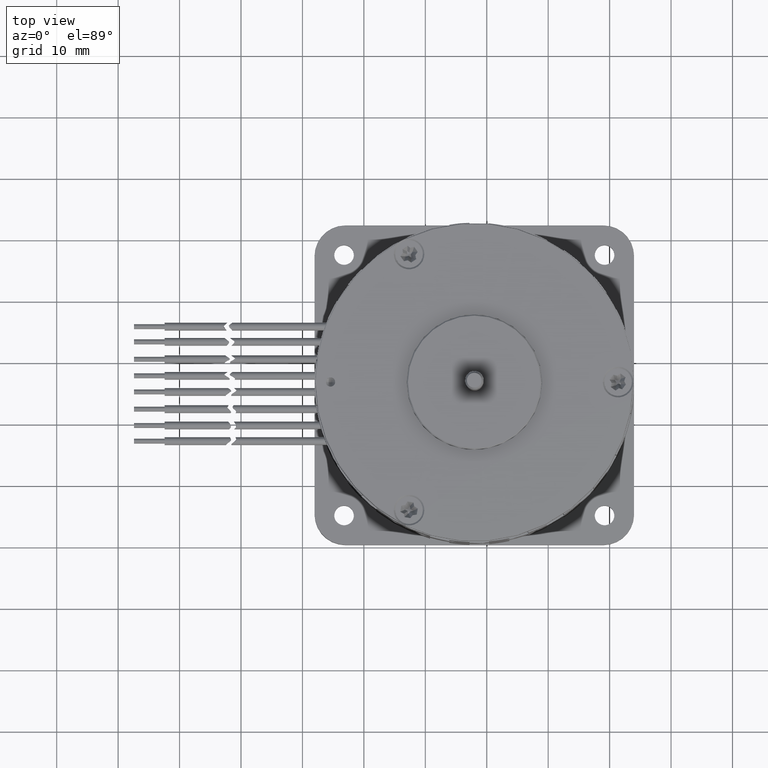
[diagram: clean part render]
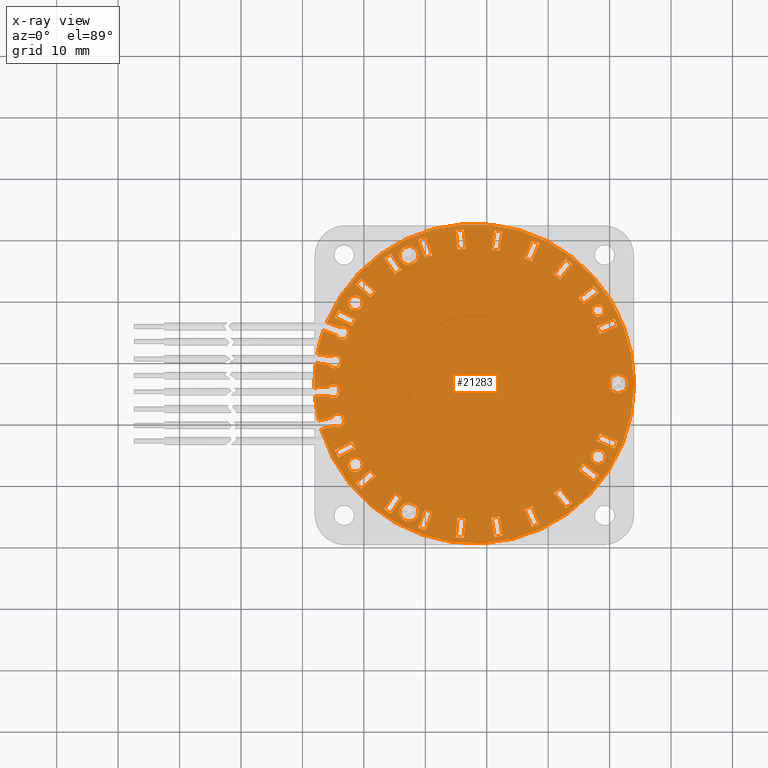
[diagram: x-ray — body ghosted, one internal face saturated and labeled with its STEP entity id]
A machine part, top view, then the same camera in x-ray: the body is ghosted and one INTERNAL B-rep face — a face not visible from any outside direction — is saturated and labeled: STEP entity #21283.
In plain terms, the highlighted planar face has unit normal (0, 0, -1).
Its self-contained STEP definition (entity closure, byte-faithful):
#16091=CARTESIAN_POINT('',(0.E0,0.E0,0.E0));
#16092=DIRECTION('',(0.E0,0.E0,1.E0));
#16093=DIRECTION('',(-9.971798217934E-1,7.504933715955E-2,0.E0));
#16094=AXIS2_PLACEMENT_3D('',#16091,#16092,#16093);
#16096=CARTESIAN_POINT('',(-2.199033457313E1,6.520046686441E-1,0.E0));
#16097=CARTESIAN_POINT('',(-2.199912406742E1,6.524653065206E-1,0.E0));
#16098=CARTESIAN_POINT('',(-2.200758075417E1,6.524472326624E-1,0.E0));
#16099=CARTESIAN_POINT('',(-2.201637024845E1,6.529078705389E-1,0.E0));
#16101=CARTESIAN_POINT('',(-2.296847929936E1,1.203726993588E0,0.E0));
#16102=DIRECTION('',(0.E0,0.E0,-1.E0));
#16103=DIRECTION('',(8.653262945289E-1,-5.012089424550E-1,0.E0));
#16104=AXIS2_PLACEMENT_3D('',#16101,#16102,#16103);
#16106=DIRECTION('',(-9.986295347546E-1,5.233595624314E-2,0.E0));
#16107=VECTOR('',#16106,2.186162505085E0);
#16108=CARTESIAN_POINT('',(-2.381130233597E1,4.968682177664E-1,0.E0));
#16109=LINE('',#16108,#16107);
#16110=CARTESIAN_POINT('',(0.E0,0.E0,0.E0));
#16111=DIRECTION('',(0.E0,0.E0,1.E0));
#16112=DIRECTION('',(-1.E0,0.E0,0.E0));
#16113=AXIS2_PLACEMENT_3D('',#16110,#16111,#16112);
#16115=DIRECTION('',(9.876883405951E-1,1.564344650406E-1,0.E0));
#16116=VECTOR('',#16115,2.184506594128E0);
#16117=CARTESIAN_POINT('',(-2.578653635208E1,-3.324837283692E0,0.E0));
#16118=LINE('',#16117,#16116);
#16119=CARTESIAN_POINT('',(-2.271683183369E1,-3.597992695925E0,0.E0));
#16120=DIRECTION('',(0.E0,0.E0,-1.E0));
#16121=DIRECTION('',(-8.291752958339E-1,5.589886660557E-1,0.E0));
#16122=AXIS2_PLACEMENT_3D('',#16119,#16120,#16121);
#16124=CARTESIAN_POINT('',(-2.182796669468E1,-2.950199751110E0,0.E0));
#16125=CARTESIAN_POINT('',(-2.181881112005E1,-2.948749650548E0,0.E0));
#16126=CARTESIAN_POINT('',(-2.181080727110E1,-2.948950141659E0,0.E0));
#16127=CARTESIAN_POINT('',(-2.180165169647E1,-2.947500041096E0,0.E0));
#16129=CARTESIAN_POINT('',(0.E0,0.E0,0.E0));
#16130=DIRECTION('',(0.E0,0.E0,1.E0));
#16131=DIRECTION('',(-9.909760946022E-1,-1.340387254753E-1,0.E0));
#16132=AXIS2_PLACEMENT_3D('',#16129,#16130,#16131);
#16134=CARTESIAN_POINT('',(-2.164519626249E1,-3.935188381692E0,0.E0));
#16135=CARTESIAN_POINT('',(-2.165340554721E1,-3.936488604656E0,0.E0));
#16136=CARTESIAN_POINT('',(-2.166234389045E1,-3.936587868741E0,0.E0));
#16137=CARTESIAN_POINT('',(-2.167055317516E1,-3.937888091706E0,0.E0));
#16139=CARTESIAN_POINT('',(-2.271683183369E1,-3.597992695925E0,0.E0));
#16140=DIRECTION('',(0.E0,0.E0,-1.E0));
#16141=DIRECTION('',(9.514894650047E-1,-3.076813253758E-1,0.E0));
#16142=AXIS2_PLACEMENT_3D('',#16139,#16140,#16141);
#16144=DIRECTION('',(-9.876883405952E-1,-1.564344650397E-1,0.E0));
#16145=VECTOR('',#16144,2.184506594130E0);
#16146=CARTESIAN_POINT('',(-2.339427296154E1,-4.464637674156E0,0.E0));
#16147=LINE('',#16146,#16145);
#16148=CARTESIAN_POINT('',(0.E0,0.E0,0.E0));
#16149=DIRECTION('',(0.E0,0.E0,1.E0));
#16150=DIRECTION('',(-9.827647944045E-1,-1.848603767147E-1,0.E0));
#16151=AXIS2_PLACEMENT_3D('',#16148,#16149,#16150);
#16153=DIRECTION('',(9.335804264970E-1,3.583679495459E-1,0.E0));
#16154=VECTOR('',#16153,2.184506594124E0);
#16155=CARTESIAN_POINT('',(-2.453176612267E1,-8.613503985167E0,0.E0));
#16156=LINE('',#16155,#16154);
#16157=CARTESIAN_POINT('',(-2.249235352484E1,-7.830646836261E0,0.E0));
#16158=CARTESIAN_POINT('',(-2.245337985330E1,-7.734115158362E0,0.E0));
#16159=CARTESIAN_POINT('',(-2.235257403624E1,-7.560248296443E0,0.E0));
#16160=CARTESIAN_POINT('',(-2.213418863801E1,-7.346466743909E0,0.E0));
#16161=CARTESIAN_POINT('',(-2.186842335132E1,-7.201632617837E0,0.E0));
#16162=CARTESIAN_POINT('',(-2.157361933515E1,-7.133378651825E0,0.E0));
#16163=CARTESIAN_POINT('',(-2.127112949432E1,-7.146993050875E0,0.E0));
#16164=CARTESIAN_POINT('',(-2.098149595531E1,-7.242442909487E0,0.E0));
#16165=CARTESIAN_POINT('',(-2.081345766101E1,-7.356133966461E0,0.E0));
#16166=CARTESIAN_POINT('',(-2.073910339935E1,-7.422999021763E0,0.E0));
#16168=CARTESIAN_POINT('',(-2.073910339935E1,-7.422999021763E0,0.E0));
#16169=CARTESIAN_POINT('',(-2.072819296764E1,-7.422999021763E0,0.E0));
#16170=CARTESIAN_POINT('',(-2.072226721687E1,-7.420724339161E0,0.E0));
#16171=CARTESIAN_POINT('',(-2.071208145139E1,-7.416814390122E0,0.E0));
#16173=CARTESIAN_POINT('',(0.E0,0.E0,0.E0));
#16174=DIRECTION('',(0.E0,0.E0,1.E0));
#16175=DIRECTION('',(-9.414082996255E-1,-3.372690519395E-1,0.E0));
#16176=AXIS2_PLACEMENT_3D('',#16173,#16174,#16175);
#16178=CARTESIAN_POINT('',(-2.035365973411E1,-8.350394816619E0,0.E0));
#16179=CARTESIAN_POINT('',(-2.036140123592E1,-8.353366500743E0,0.E0));
#16180=CARTESIAN_POINT('',(-2.037032201946E1,-8.353607764135E0,0.E0));
#16181=CARTESIAN_POINT('',(-2.037806352128E1,-8.356579448259E0,0.E0));
#16183=CARTESIAN_POINT('',(-2.037806352128E1,-8.356579448259E0,0.E0));
#16184=CARTESIAN_POINT('',(-2.038925884011E1,-8.462461269849E0,0.E0));
#16185=CARTESIAN_POINT('',(-2.043860157373E1,-8.656150259421E0,0.E0));
#16186=CARTESIAN_POINT('',(-2.058975573436E1,-8.922188025002E0,0.E0));
#16187=CARTESIAN_POINT('',(-2.080549785094E1,-9.134361825231E0,0.E0));
#16188=CARTESIAN_POINT('',(-2.107023516033E1,-9.280995124541E0,0.E0));
#16189=CARTESIAN_POINT('',(-2.136465438652E1,-9.351168997715E0,0.E0));
#16190=CARTESIAN_POINT('',(-2.166999300451E1,-9.338433537900E0,0.E0));
#16191=CARTESIAN_POINT('',(-2.186124621802E1,-9.276676016456E0,0.E0));
#16192=CARTESIAN_POINT('',(-2.195480160052E1,-9.231017476008E0,0.E0));
#16194=DIRECTION('',(-9.335804264974E-1,-3.583679495447E-1,0.E0));
#16195=VECTOR('',#16194,2.184506594126E0);
#16196=CARTESIAN_POINT('',(-2.195480160052E1,-9.231017476008E0,0.E0));
#16197=LINE('',#16196,#16195);
#16198=CARTESIAN_POINT('',(0.E0,0.E0,0.E0));
#16199=DIRECTION('',(0.E0,0.E0,1.E0));
#16200=DIRECTION('',(-9.228543922444E-1,-3.851490240351E-1,0.E0));
#16201=AXIS2_PLACEMENT_3D('',#16198,#16199,#16200);
#16203=CARTESIAN_POINT('',(0.E0,0.E0,0.E0));
#16204=DIRECTION('',(0.E0,0.E0,1.E0));
#16205=DIRECTION('',(1.E0,0.E0,0.E0));
#16206=AXIS2_PLACEMENT_3D('',#16203,#16204,#16205);
#16208=DIRECTION('',(9.659258262892E-1,-2.588190451022E-1,0.E0));
#16209=VECTOR('',#16208,2.184506594128E0);
#16210=CARTESIAN_POINT('',(-2.490950630832E1,7.450939234479E0,0.E0));
#16211=LINE('',#16210,#16209);
#16212=CARTESIAN_POINT('',(-2.279943497135E1,6.885547323767E0,0.E0));
#16213=CARTESIAN_POINT('',(-2.271116471209E1,6.940734942318E0,0.E0));
#16214=CARTESIAN_POINT('',(-2.252741463112E1,7.022145410756E0,0.E0));
#16215=CARTESIAN_POINT('',(-2.222507986926E1,7.066728325963E0,0.E0));
#16216=CARTESIAN_POINT('',(-2.192493847761E1,7.027711696660E0,0.E0));
#16217=CARTESIAN_POINT('',(-2.164632354292E1,6.909563069837E0,0.E0));
#16218=CARTESIAN_POINT('',(-2.140958706278E1,6.721069873765E0,0.E0));
#16219=CARTESIAN_POINT('',(-2.123144503285E1,6.472412179339E0,0.E0));
#16220=CARTESIAN_POINT('',(-2.116214497504E1,6.284636486958E0,0.E0));
#16221=CARTESIAN_POINT('',(-2.114006901265E1,6.181094452129E0,0.E0));
#16223=CARTESIAN_POINT('',(-2.114006901265E1,6.181094452129E0,0.E0));
#16224=CARTESIAN_POINT('',(-2.113210304770E1,6.178959978255E0,0.E0));
#16225=CARTESIAN_POINT('',(-2.112311827811E1,6.178762286458E0,0.E0));
#16226=CARTESIAN_POINT('',(-2.111515231316E1,6.176627812584E0,0.E0));
#16228=CARTESIAN_POINT('',(0.E0,0.E0,0.E0));
#16229=DIRECTION('',(0.E0,0.E0,1.E0));
#16230=DIRECTION('',(-9.597496312240E-1,2.808569838286E-1,0.E0));
#16231=AXIS2_PLACEMENT_3D('',#16228,#16229,#16230);
#16233=CARTESIAN_POINT('',(-2.137400763241E1,5.210701986295E0,0.E0));
#16234=CARTESIAN_POINT('',(-2.138361317811E1,5.213275784507E0,0.E0));
#16235=CARTESIAN_POINT('',(-2.139101620510E1,5.212594827629E0,0.E0));
#16236=CARTESIAN_POINT('',(-2.140062175080E1,5.215168625840E0,0.E0));
#16238=CARTESIAN_POINT('',(-2.140062175080E1,5.215168625840E0,0.E0));
#16239=CARTESIAN_POINT('',(-2.146860040534E1,5.139765195361E0,0.E0));
#16240=CARTESIAN_POINT('',(-2.162348918068E1,5.009823740903E0,0.E0));
#16241=CARTESIAN_POINT('',(-2.190169752812E1,4.884343857009E0,0.E0));
#16242=CARTESIAN_POINT('',(-2.220107004676E1,4.839259720724E0,0.E0));
#16243=CARTESIAN_POINT('',(-2.250140353549E1,4.876304414935E0,0.E0));
#16244=CARTESIAN_POINT('',(-2.278084954921E1,4.992570442264E0,0.E0));
#16245=CARTESIAN_POINT('',(-2.302038559515E1,5.182351926620E0,0.E0));
#16246=CARTESIAN_POINT('',(-2.313881306136E1,5.344729575062E0,0.E0));
#16247=CARTESIAN_POINT('',(-2.318766353900E1,5.436658584333E0,0.E0));
#16249=DIRECTION('',(-9.659258262889E-1,2.588190451030E-1,0.E0));
#16250=VECTOR('',#16249,2.184506594128E0);
#16251=CARTESIAN_POINT('',(-2.318766353900E1,5.436658584333E0,0.E0));
#16252=LINE('',#16251,#16250);
#16253=CARTESIAN_POINT('',(0.E0,0.E0,0.E0));
#16254=DIRECTION('',(0.E0,0.E0,1.E0));
#16255=DIRECTION('',(-9.729898029220E-1,2.308480959633E-1,0.E0));
#16256=AXIS2_PLACEMENT_3D('',#16253,#16254,#16255);
#16258=DIRECTION('',(9.986295347546E-1,-5.233595624217E-2,0.E0));
#16259=VECTOR('',#16258,2.184506594128E0);
#16260=CARTESIAN_POINT('',(-2.591431120537E1,2.109140761422E0,0.E0));
#16261=LINE('',#16260,#16259);
#16262=CARTESIAN_POINT('',(-2.296847929936E1,1.203726993588E0,0.E0));
#16263=DIRECTION('',(0.E0,0.E0,-1.E0));
#16264=DIRECTION('',(-6.948355474983E-1,7.191686602826E-1,0.E0));
#16265=AXIS2_PLACEMENT_3D('',#16262,#16263,#16264);
#16267=CARTESIAN_POINT('',(-2.196371738331E1,1.651537405293E0,0.E0));
#16268=CARTESIAN_POINT('',(-2.195523751066E1,1.651092993999E0,0.E0));
#16269=CARTESIAN_POINT('',(-2.194647162719E1,1.651078614693E0,0.E0));
#16270=CARTESIAN_POINT('',(-2.193799175454E1,1.650634203399E0,0.E0));
#16272=CARTESIAN_POINT('',(0.E0,0.E0,0.E0));
#16273=DIRECTION('',(0.E0,0.E0,1.E0));
#16274=DIRECTION('',(-8.769857660053E-1,4.805163537531E-1,0.E0));
#16275=AXIS2_PLACEMENT_3D('',#16272,#16273,#16274);
#16277=DIRECTION('',(-8.910065241886E-1,4.539904997392E-1,0.E0));
#16278=VECTOR('',#16277,3.151240697249E0);
#16279=CARTESIAN_POINT('',(-1.989295431177E1,9.395231170640E0,0.E0));
#16280=LINE('',#16279,#16278);
#16281=CARTESIAN_POINT('',(0.E0,0.E0,0.E0));
#16282=DIRECTION('',(0.E0,0.E0,-1.E0));
#16283=DIRECTION('',(-9.026135320998E-1,4.304518691682E-1,0.E0));
#16284=AXIS2_PLACEMENT_3D('',#16281,#16282,#16283);
#16286=DIRECTION('',(8.910065241884E-1,-4.539904997395E-1,0.E0));
#16287=VECTOR('',#16286,3.151240697246E0);
#16288=CARTESIAN_POINT('',(-2.210146287265E1,1.200199312151E1,0.E0));
#16289=LINE('',#16288,#16287);
#16290=CARTESIAN_POINT('',(0.E0,0.E0,0.E0));
#16291=DIRECTION('',(0.E0,0.E0,1.E0));
#16292=DIRECTION('',(-9.042251959896E-1,-4.270559623018E-1,0.E0));
#16293=AXIS2_PLACEMENT_3D('',#16290,#16291,#16292);
#16295=DIRECTION('',(-8.910065241884E-1,-4.539904997395E-1,0.E0));
#16296=VECTOR('',#16295,3.151240697246E0);
#16297=CARTESIAN_POINT('',(-1.929368685212E1,-1.057135978257E1,0.E0));
#16298=LINE('',#16297,#16296);
#16299=CARTESIAN_POINT('',(0.E0,0.E0,0.E0));
#16300=DIRECTION('',(0.E0,0.E0,-1.E0));
#16301=DIRECTION('',(-8.787858001054E-1,-4.772164263026E-1,0.E0));
#16302=AXIS2_PLACEMENT_3D('',#16299,#16300,#16301);
#16304=DIRECTION('',(8.910065241886E-1,4.539904997392E-1,0.E0));
#16305=VECTOR('',#16304,3.151240697249E0);
#16306=CARTESIAN_POINT('',(-2.270073033231E1,-1.082586450958E1,0.E0));
#16307=LINE('',#16306,#16305);
#16308=CARTESIAN_POINT('',(0.E0,0.E0,0.E0));
#16309=DIRECTION('',(0.E0,0.E0,1.E0));
#16310=DIRECTION('',(-7.696127996259E-1,-6.385108759073E-1,0.E0));
#16311=AXIS2_PLACEMENT_3D('',#16308,#16309,#16310);
#16313=DIRECTION('',(-7.501110696302E-1,-6.613118653239E-1,0.E0));
#16314=VECTOR('',#16313,3.151240697251E0);
#16315=CARTESIAN_POINT('',(-1.605854992954E1,-1.503738588187E1,0.E0));
#16316=LINE('',#16315,#16314);
#16317=CARTESIAN_POINT('',(0.E0,0.E0,0.E0));
#16318=DIRECTION('',(0.E0,0.E0,-1.E0));
#16319=DIRECTION('',(-7.324982290106E-1,-6.807689362011E-1,0.E0));
#16320=AXIS2_PLACEMENT_3D('',#16317,#16318,#16319);
#16322=DIRECTION('',(7.501110696307E-1,6.613118653233E-1,0.E0));
#16323=VECTOR('',#16322,3.151240697249E0);
#16324=CARTESIAN_POINT('',(-1.929526212185E1,-1.613119213354E1,0.E0));
#16325=LINE('',#16324,#16323);
#16326=CARTESIAN_POINT('',(0.E0,0.E0,0.E0));
#16327=DIRECTION('',(0.E0,0.E0,1.E0));
#16328=DIRECTION('',(-5.866428006237E-1,-8.098458029010E-1,0.E0));
#16329=AXIS2_PLACEMENT_3D('',#16326,#16327,#16328);
#16331=DIRECTION('',(-5.620833778521E-1,-8.270805742746E-1,0.E0));
#16332=VECTOR('',#16331,3.151240697245E0);
#16333=CARTESIAN_POINT('',(-1.181439525568E1,-1.855855772259E1,0.E0));
#16334=LINE('',#16333,#16332);
#16335=CARTESIAN_POINT('',(0.E0,0.E0,0.E0));
#16336=DIRECTION('',(0.E0,0.E0,-1.E0));
#16337=DIRECTION('',(-5.401851002470E-1,-8.415462301449E-1,0.E0));
#16338=AXIS2_PLACEMENT_3D('',#16335,#16336,#16337);
#16340=DIRECTION('',(5.620833778524E-1,8.270805742744E-1,0.E0));
#16341=VECTOR('',#16340,3.151240697250E0);
#16342=CARTESIAN_POINT('',(-1.467740162926E1,-2.042293762938E1,0.E0));
#16343=LINE('',#16342,#16341);
#16344=CARTESIAN_POINT('',(0.E0,0.E0,0.E0));
#16345=DIRECTION('',(0.E0,0.E0,1.E0));
#16346=DIRECTION('',(-3.668118769372E-1,-9.302951396938E-1,0.E0));
#16347=AXIS2_PLACEMENT_3D('',#16344,#16345,#16346);
#16349=DIRECTION('',(-3.387379202455E-1,-9.408807689542E-1,0.E0));
#16350=VECTOR('',#16349,3.151240697246E0);
#16351=CARTESIAN_POINT('',(-6.827898677598E0,-2.091362712799E1,0.E0));
#16352=LINE('',#16351,#16350);
#16353=CARTESIAN_POINT('',(0.E0,0.E0,0.E0));
#16354=DIRECTION('',(0.E0,0.E0,-1.E0));
#16355=DIRECTION('',(-3.139301549732E-1,-9.494460794582E-1,0.E0));
#16356=AXIS2_PLACEMENT_3D('',#16353,#16354,#16355);
#16358=DIRECTION('',(3.387379202453E-1,9.408807689542E-1,0.E0));
#16359=VECTOR('',#16358,3.151240697249E0);
#16360=CARTESIAN_POINT('',(-9.137306012595E0,-2.343143484365E1,0.E0));
#16361=LINE('',#16360,#16359);
#16362=CARTESIAN_POINT('',(0.E0,0.E0,0.E0));
#16363=DIRECTION('',(0.E0,0.E0,1.E0));
#16364=DIRECTION('',(-1.239328139828E-1,-9.922906114734E-1,0.E0));
#16365=AXIS2_PLACEMENT_3D('',#16362,#16363,#16364);
#16367=DIRECTION('',(-9.410831331854E-2,-9.955619646031E-1,0.E0));
#16368=VECTOR('',#16367,3.151240697248E0);
#16369=CARTESIAN_POINT('',(-1.412380114347E0,-2.195461642600E1,0.E0));
#16370=LINE('',#16369,#16368);
#16371=CARTESIAN_POINT('',(0.E0,0.E0,0.E0));
#16372=DIRECTION('',(0.E0,0.E0,-1.E0));
#16373=DIRECTION('',(-6.794982350797E-2,-9.976887397807E-1,0.E0));
#16374=AXIS2_PLACEMENT_3D('',#16371,#16372,#16373);
#16376=DIRECTION('',(9.410831331867E-2,9.955619646031E-1,0.E0));
#16377=VECTOR('',#16376,3.151240697245E0);
#16378=CARTESIAN_POINT('',(-3.023079854502E0,-2.496764883190E1,0.E0));
#16379=LINE('',#16378,#16377);
#16380=CARTESIAN_POINT('',(0.E0,0.E0,0.E0));
#16381=DIRECTION('',(0.E0,0.E0,1.E0));
#16382=DIRECTION('',(1.267334034670E-1,-9.919368147446E-1,0.E0));
#16383=AXIS2_PLACEMENT_3D('',#16380,#16381,#16382);
#16385=DIRECTION('',(1.564344650402E-1,-9.876883405951E-1,0.E0));
#16386=VECTOR('',#16385,3.151240697248E0);
#16387=CARTESIAN_POINT('',(4.091883485859E0,-2.161611643053E1,0.E0));
#16388=LINE('',#16387,#16386);
#16389=CARTESIAN_POINT('',(0.E0,0.E0,0.E0));
#16390=DIRECTION('',(0.E0,0.E0,-1.E0));
#16391=DIRECTION('',(1.823000452702E-1,-9.832429473403E-1,0.E0));
#16392=AXIS2_PLACEMENT_3D('',#16389,#16390,#16391);
#16394=DIRECTION('',(-1.564344650402E-1,9.876883405951E-1,0.E0));
#16395=VECTOR('',#16394,3.151240697248E0);
#16396=CARTESIAN_POINT('',(3.281097528961E0,-2.493505361946E1,0.E0));
#16397=LINE('',#16396,#16395);
#16398=CARTESIAN_POINT('',(0.E0,0.E0,0.E0));
#16399=DIRECTION('',(0.E0,0.E0,1.E0));
#16400=DIRECTION('',(3.694364950842E-1,-9.292559798570E-1,0.E0));
#16401=AXIS2_PLACEMENT_3D('',#16398,#16399,#16400);
#16403=DIRECTION('',(3.971478906350E-1,-9.177546256839E-1,0.E0));
#16404=VECTOR('',#16403,3.151240697247E0);
#16405=CARTESIAN_POINT('',(9.339038997755E0,-1.991939634122E1,0.E0));
#16406=LINE('',#16405,#16404);
#16407=CARTESIAN_POINT('',(0.E0,0.E0,0.E0));
#16408=DIRECTION('',(0.E0,0.E0,-1.E0));
#16409=DIRECTION('',(4.210953317515E-1,-9.070163844039E-1,0.E0));
#16410=AXIS2_PLACEMENT_3D('',#16407,#16408,#16409);
#16412=DIRECTION('',(-3.971478906346E-1,9.177546256841E-1,0.E0));
#16413=VECTOR('',#16412,3.151240697250E0);
#16414=CARTESIAN_POINT('',(9.379111487646E0,-2.333569728340E1,0.E0));
#16415=LINE('',#16414,#16413);
#16416=CARTESIAN_POINT('',(0.E0,0.E0,0.E0));
#16417=DIRECTION('',(0.E0,0.E0,1.E0));
#16418=DIRECTION('',(5.889265330228E-1,-8.081865741905E-1,0.E0));
#16419=AXIS2_PLACEMENT_3D('',#16416,#16417,#16418);
#16421=DIRECTION('',(6.129070536530E-1,-7.901550123757E-1,0.E0));
#16422=VECTOR('',#16421,3.151240697247E0);
#16423=CARTESIAN_POINT('',(1.399938834284E1,-1.697106732137E1,0.E0));
#16424=LINE('',#16423,#16422);
#16425=CARTESIAN_POINT('',(0.E0,0.E0,0.E0));
#16426=DIRECTION('',(0.E0,0.E0,-1.E0));
#16427=DIRECTION('',(6.334316498585E-1,-7.737986462624E-1,0.E0));
#16428=AXIS2_PLACEMENT_3D('',#16425,#16426,#16427);
#16430=DIRECTION('',(-6.129070536530E-1,7.901550123757E-1,0.E0));
#16431=VECTOR('',#16430,3.151240697247E0);
#16432=CARTESIAN_POINT('',(1.488780137760E1,-2.027007326432E1,0.E0));
#16433=LINE('',#16432,#16431);
#16434=CARTESIAN_POINT('',(0.E0,0.E0,0.E0));
#16435=DIRECTION('',(0.E0,0.E0,1.E0));
#16436=DIRECTION('',(7.714121509713E-1,-6.363358337654E-1,0.E0));
#16437=AXIS2_PLACEMENT_3D('',#16434,#16435,#16436);
#16439=DIRECTION('',(7.901550123757E-1,-6.129070536530E-1,0.E0));
#16440=VECTOR('',#16439,3.151240697247E0);
#16441=CARTESIAN_POINT('',(1.778010463219E1,-1.295638372650E1,0.E0));
#16442=LINE('',#16441,#16440);
#16443=CARTESIAN_POINT('',(0.E0,0.E0,0.E0));
#16444=DIRECTION('',(0.E0,0.E0,-1.E0));
#16445=DIRECTION('',(8.059671278061E-1,-5.919602933440E-1,0.E0));
#16446=AXIS2_PLACEMENT_3D('',#16443,#16444,#16445);
#16448=DIRECTION('',(-7.901550123757E-1,6.129070536530E-1,0.E0));
#16449=VECTOR('',#16448,3.151240697247E0);
#16450=CARTESIAN_POINT('',(1.946103595350E1,-1.593080599394E1,0.E0));
#16451=LINE('',#16450,#16449);
#16452=CARTESIAN_POINT('',(0.E0,0.E0,0.E0));
#16453=DIRECTION('',(0.E0,0.E0,1.E0));
#16454=DIRECTION('',(9.054271064189E-1,-4.245017726251E-1,0.E0));
#16455=AXIS2_PLACEMENT_3D('',#16452,#16453,#16454);
#16457=DIRECTION('',(9.177546256841E-1,-3.971478906346E-1,0.E0));
#16458=VECTOR('',#16457,3.151240697250E0);
#16459=CARTESIAN_POINT('',(2.044363155685E1,-8.127602891851E0,0.E0));
#16460=LINE('',#16459,#16458);
#16461=CARTESIAN_POINT('',(0.E0,0.E0,0.E0));
#16462=DIRECTION('',(0.E0,0.E0,-1.E0));
#16463=DIRECTION('',(9.278607269740E-1,-3.729268981171E-1,0.E0));
#16464=AXIS2_PLACEMENT_3D('',#16461,#16462,#16463);
#16466=DIRECTION('',(-9.177546256839E-1,3.971478906350E-1,0.E0));
#16467=VECTOR('',#16466,3.151240697247E0);
#16468=CARTESIAN_POINT('',(2.281146206776E1,-1.059054759355E1,0.E0));
#16469=LINE('',#16468,#16467);
#16470=CARTESIAN_POINT('',(0.E0,0.E0,0.E0));
#16471=DIRECTION('',(0.E0,0.E0,1.E0));
#16472=DIRECTION('',(9.292559798570E-1,3.694364950842E-1,0.E0));
#16473=AXIS2_PLACEMENT_3D('',#16470,#16471,#16472);
#16475=DIRECTION('',(9.177546256839E-1,3.971478906350E-1,0.E0));
#16476=VECTOR('',#16475,3.151240697247E0);
#16477=CARTESIAN_POINT('',(1.991939634122E1,9.339038997755E0,0.E0));
#16478=LINE('',#16477,#16476);
#16479=CARTESIAN_POINT('',(0.E0,0.E0,0.E0));
#16480=DIRECTION('',(0.E0,0.E0,-1.E0));
#16481=DIRECTION('',(9.070163844039E-1,4.210953317515E-1,0.E0));
#16482=AXIS2_PLACEMENT_3D('',#16479,#16480,#16481);
#16484=DIRECTION('',(-9.177546256841E-1,-3.971478906346E-1,0.E0));
#16485=VECTOR('',#16484,3.151240697250E0);
#16486=CARTESIAN_POINT('',(2.333569728340E1,9.379111487646E0,0.E0));
#16487=LINE('',#16486,#16485);
#16488=CARTESIAN_POINT('',(0.E0,0.E0,0.E0));
#16489=DIRECTION('',(0.E0,0.E0,1.E0));
#16490=DIRECTION('',(8.081865741905E-1,5.889265330228E-1,0.E0));
#16491=AXIS2_PLACEMENT_3D('',#16488,#16489,#16490);
#16493=DIRECTION('',(7.901550123757E-1,6.129070536530E-1,0.E0));
#16494=VECTOR('',#16493,3.151240697247E0);
#16495=CARTESIAN_POINT('',(1.697106732137E1,1.399938834284E1,0.E0));
#16496=LINE('',#16495,#16494);
#16497=CARTESIAN_POINT('',(0.E0,0.E0,0.E0));
#16498=DIRECTION('',(0.E0,0.E0,-1.E0));
#16499=DIRECTION('',(7.737986462624E-1,6.334316498585E-1,0.E0));
#16500=AXIS2_PLACEMENT_3D('',#16497,#16498,#16499);
#16502=DIRECTION('',(-7.901550123757E-1,-6.129070536530E-1,0.E0));
#16503=VECTOR('',#16502,3.151240697247E0);
#16504=CARTESIAN_POINT('',(2.027007326432E1,1.488780137760E1,0.E0));
#16505=LINE('',#16504,#16503);
#16506=CARTESIAN_POINT('',(0.E0,0.E0,0.E0));
#16507=DIRECTION('',(0.E0,0.E0,1.E0));
#16508=DIRECTION('',(6.363358337654E-1,7.714121509713E-1,0.E0));
#16509=AXIS2_PLACEMENT_3D('',#16506,#16507,#16508);
#16511=DIRECTION('',(6.129070536530E-1,7.901550123757E-1,0.E0));
#16512=VECTOR('',#16511,3.151240697247E0);
#16513=CARTESIAN_POINT('',(1.295638372650E1,1.778010463219E1,0.E0));
#16514=LINE('',#16513,#16512);
#16515=CARTESIAN_POINT('',(0.E0,0.E0,0.E0));
#16516=DIRECTION('',(0.E0,0.E0,-1.E0));
#16517=DIRECTION('',(5.919602933440E-1,8.059671278061E-1,0.E0));
#16518=AXIS2_PLACEMENT_3D('',#16515,#16516,#16517);
#16520=DIRECTION('',(-6.129070536530E-1,-7.901550123757E-1,0.E0));
#16521=VECTOR('',#16520,3.151240697247E0);
#16522=CARTESIAN_POINT('',(1.593080599394E1,1.946103595350E1,0.E0));
#16523=LINE('',#16522,#16521);
#16524=CARTESIAN_POINT('',(0.E0,0.E0,0.E0));
#16525=DIRECTION('',(0.E0,0.E0,1.E0));
#16526=DIRECTION('',(4.245017726251E-1,9.054271064189E-1,0.E0));
#16527=AXIS2_PLACEMENT_3D('',#16524,#16525,#16526);
#16529=DIRECTION('',(3.971478906346E-1,9.177546256841E-1,0.E0));
#16530=VECTOR('',#16529,3.151240697250E0);
#16531=CARTESIAN_POINT('',(8.127602891851E0,2.044363155685E1,0.E0));
#16532=LINE('',#16531,#16530);
#16533=CARTESIAN_POINT('',(0.E0,0.E0,0.E0));
#16534=DIRECTION('',(0.E0,0.E0,-1.E0));
#16535=DIRECTION('',(3.729268981171E-1,9.278607269740E-1,0.E0));
#16536=AXIS2_PLACEMENT_3D('',#16533,#16534,#16535);
#16538=DIRECTION('',(-3.971478906350E-1,-9.177546256839E-1,0.E0));
#16539=VECTOR('',#16538,3.151240697247E0);
#16540=CARTESIAN_POINT('',(1.059054759355E1,2.281146206776E1,0.E0));
#16541=LINE('',#16540,#16539);
#16542=CARTESIAN_POINT('',(0.E0,0.E0,0.E0));
#16543=DIRECTION('',(0.E0,0.E0,1.E0));
#16544=DIRECTION('',(1.859947039027E-1,9.825507468422E-1,0.E0));
#16545=AXIS2_PLACEMENT_3D('',#16542,#16543,#16544);
#16547=DIRECTION('',(1.564344650402E-1,9.876883405951E-1,0.E0));
#16548=VECTOR('',#16547,3.151240697248E0);
#16549=CARTESIAN_POINT('',(2.788134876274E0,2.182260992438E1,0.E0));
#16550=LINE('',#16549,#16548);
#16551=CARTESIAN_POINT('',(0.E0,0.E0,0.E0));
#16552=DIRECTION('',(0.E0,0.E0,-1.E0));
#16553=DIRECTION('',(1.304611343523E-1,9.914534242331E-1,0.E0));
#16554=AXIS2_PLACEMENT_3D('',#16551,#16552,#16553);
#16556=DIRECTION('',(-1.564344650402E-1,-9.876883405951E-1,0.E0));
#16557=VECTOR('',#16556,3.151240697248E0);
#16558=CARTESIAN_POINT('',(4.584846138546E0,2.472856012561E1,0.E0));
#16559=LINE('',#16558,#16557);
#16560=CARTESIAN_POINT('',(0.E0,0.E0,0.E0));
#16561=DIRECTION('',(0.E0,0.E0,1.E0));
#16562=DIRECTION('',(-6.419909610666E-2,9.979371102725E-1,0.E0));
#16563=AXIS2_PLACEMENT_3D('',#16560,#16561,#16562);
#16565=DIRECTION('',(-9.410831331867E-2,9.955619646031E-1,0.E0));
#16566=VECTOR('',#16565,3.151240697245E0);
#16567=CARTESIAN_POINT('',(-2.726521907623E0,2.183039345242E1,0.E0));
#16568=LINE('',#16567,#16566);
#16569=CARTESIAN_POINT('',(0.E0,0.E0,0.E0));
#16570=DIRECTION('',(0.E0,0.E0,-1.E0));
#16571=DIRECTION('',(-1.202019822864E-1,9.927494565370E-1,0.E0));
#16572=AXIS2_PLACEMENT_3D('',#16569,#16570,#16571);
#16574=DIRECTION('',(9.410831331854E-2,-9.955619646031E-1,0.E0));
#16575=VECTOR('',#16574,3.151240697248E0);
#16576=CARTESIAN_POINT('',(-1.708938061225E0,2.509187180549E1,0.E0));
#16577=LINE('',#16576,#16575);
#16578=CARTESIAN_POINT('',(0.E0,0.E0,0.E0));
#16579=DIRECTION('',(0.E0,0.E0,1.E0));
#16580=DIRECTION('',(-3.103590307999E-1,9.506194149085E-1,0.E0));
#16581=AXIS2_PLACEMENT_3D('',#16578,#16579,#16580);
#16583=DIRECTION('',(-3.387379202453E-1,9.408807689542E-1,0.E0));
#16584=VECTOR('',#16583,3.151240697249E0);
#16585=CARTESIAN_POINT('',(-8.069861292617E0,2.046649307326E1,0.E0));
#16586=LINE('',#16585,#16584);
#16587=CARTESIAN_POINT('',(0.E0,0.E0,0.E0));
#16588=DIRECTION('',(0.E0,0.E0,-1.E0));
#16589=DIRECTION('',(-3.633123663060E-1,9.316673894095E-1,0.E0));
#16590=AXIS2_PLACEMENT_3D('',#16587,#16588,#16589);
#16592=DIRECTION('',(3.387379202455E-1,-9.408807689542E-1,0.E0));
#16593=VECTOR('',#16592,3.151240697246E0);
#16594=CARTESIAN_POINT('',(-7.895343397576E0,2.387856889837E1,0.E0));
#16595=LINE('',#16594,#16593);
#16596=CARTESIAN_POINT('',(0.E0,0.E0,0.E0));
#16597=DIRECTION('',(0.E0,0.E0,1.E0));
#16598=DIRECTION('',(-5.370179661672E-1,8.435708055722E-1,0.E0));
#16599=AXIS2_PLACEMENT_3D('',#16596,#16597,#16598);
#16601=DIRECTION('',(-5.620833778524E-1,8.270805742744E-1,0.E0));
#16602=VECTOR('',#16601,3.151240697250E0);
#16603=CARTESIAN_POINT('',(-1.290614161372E1,1.781660766382E1,0.E0));
#16604=LINE('',#16603,#16602);
#16605=CARTESIAN_POINT('',(0.E0,0.E0,0.E0));
#16606=DIRECTION('',(0.E0,0.E0,-1.E0));
#16607=DIRECTION('',(-5.835944981812E-1,8.120452337725E-1,0.E0));
#16608=AXIS2_PLACEMENT_3D('',#16605,#16606,#16607);
#16610=DIRECTION('',(5.620833778521E-1,-8.270805742746E-1,0.E0));
#16611=VECTOR('',#16610,3.151240697245E0);
#16612=CARTESIAN_POINT('',(-1.358565527121E1,2.116488768814E1,0.E0));
#16613=LINE('',#16612,#16611);
#16614=CARTESIAN_POINT('',(2.014136343189E1,-1.191156912856E1,0.E0));
#16615=DIRECTION('',(0.E0,0.E0,-1.E0));
#16616=DIRECTION('',(-1.E0,0.E0,0.E0));
#16617=AXIS2_PLACEMENT_3D('',#16614,#16615,#16616);
#16619=CARTESIAN_POINT('',(2.014136343189E1,-1.191156912856E1,0.E0));
#16620=DIRECTION('',(0.E0,0.E0,-1.E0));
#16621=DIRECTION('',(1.E0,0.E0,0.E0));
#16622=AXIS2_PLACEMENT_3D('',#16619,#16620,#16621);
#16624=CARTESIAN_POINT('',(-1.935368543802E1,-1.315275104174E1,0.E0));
#16625=DIRECTION('',(0.E0,0.E0,-1.E0));
#16626=DIRECTION('',(1.E0,0.E0,0.E0));
#16627=AXIS2_PLACEMENT_3D('',#16624,#16625,#16626);
#16629=CARTESIAN_POINT('',(-1.935368543802E1,-1.315275104174E1,0.E0));
#16630=DIRECTION('',(0.E0,0.E0,-1.E0));
#16631=DIRECTION('',(-1.E0,0.E0,0.E0));
#16632=AXIS2_PLACEMENT_3D('',#16629,#16630,#16631);
#16634=CARTESIAN_POINT('',(-1.935368543802E1,1.315275104174E1,0.E0));
#16635=DIRECTION('',(0.E0,0.E0,-1.E0));
#16636=DIRECTION('',(1.E0,0.E0,0.E0));
#16637=AXIS2_PLACEMENT_3D('',#16634,#16635,#16636);
#16639=CARTESIAN_POINT('',(-1.935368543802E1,1.315275104174E1,0.E0));
#16640=DIRECTION('',(0.E0,0.E0,-1.E0));
#16641=DIRECTION('',(-1.E0,0.E0,0.E0));
#16642=AXIS2_PLACEMENT_3D('',#16639,#16640,#16641);
#16644=CARTESIAN_POINT('',(2.014136343189E1,1.191156912856E1,0.E0));
#16645=DIRECTION('',(0.E0,0.E0,-1.E0));
#16646=DIRECTION('',(1.E0,0.E0,0.E0));
#16647=AXIS2_PLACEMENT_3D('',#16644,#16645,#16646);
#16649=CARTESIAN_POINT('',(2.014136343189E1,1.191156912856E1,0.E0));
#16650=DIRECTION('',(0.E0,0.E0,-1.E0));
#16651=DIRECTION('',(-1.E0,0.E0,0.E0));
#16652=AXIS2_PLACEMENT_3D('',#16649,#16650,#16651);
#16654=CARTESIAN_POINT('',(0.E0,0.E0,0.E0));
#16655=DIRECTION('',(0.E0,0.E0,1.E0));
#16656=DIRECTION('',(-4.799152888652E-1,-8.773148326077E-1,0.E0));
#16657=AXIS2_PLACEMENT_3D('',#16654,#16655,#16656);
#16659=CARTESIAN_POINT('',(-1.062337769391E1,-2.084955266601E1,0.E0));
#16660=DIRECTION('',(0.E0,0.E0,-1.E0));
#16661=DIRECTION('',(7.835594433257E-1,6.213168264059E-1,0.E0));
#16662=AXIS2_PLACEMENT_3D('',#16659,#16660,#16661);
#16664=CARTESIAN_POINT('',(-1.062337769391E1,-2.084955266601E1,0.E0));
#16665=DIRECTION('',(0.E0,0.E0,-1.E0));
#16666=DIRECTION('',(1.E0,0.E0,0.E0));
#16667=AXIS2_PLACEMENT_3D('',#16664,#16665,#16666);
#16669=CARTESIAN_POINT('',(-1.062337769391E1,-2.084955266601E1,0.E0));
#16670=DIRECTION('',(0.E0,0.E0,-1.E0));
#16671=DIRECTION('',(-1.E0,0.E0,0.E0));
#16672=AXIS2_PLACEMENT_3D('',#16669,#16670,#16671);
#16674=CARTESIAN_POINT('',(0.E0,0.E0,0.E0));
#16675=DIRECTION('',(0.E0,0.E0,1.E0));
#16676=DIRECTION('',(-4.276754798525E-1,9.039323447764E-1,0.E0));
#16677=AXIS2_PLACEMENT_3D('',#16674,#16675,#16676);
#16679=CARTESIAN_POINT('',(-1.062337769391E1,2.084955266601E1,0.E0));
#16680=DIRECTION('',(0.E0,0.E0,-1.E0));
#16681=DIRECTION('',(4.209118637191E-2,-9.991137733160E-1,0.E0));
#16682=AXIS2_PLACEMENT_3D('',#16679,#16680,#16681);
#16684=CARTESIAN_POINT('',(-1.062337769391E1,2.084955266601E1,0.E0));
#16685=DIRECTION('',(0.E0,0.E0,-1.E0));
#16686=DIRECTION('',(-1.E0,0.E0,0.E0));
#16687=AXIS2_PLACEMENT_3D('',#16684,#16685,#16686);
#16689=CARTESIAN_POINT('',(-1.062337769391E1,2.084955266601E1,0.E0));
#16690=DIRECTION('',(0.E0,0.E0,-1.E0));
#16691=DIRECTION('',(1.E0,0.E0,0.E0));
#16692=AXIS2_PLACEMENT_3D('',#16689,#16690,#16691);
#16694=CARTESIAN_POINT('',(0.E0,0.E0,0.E0));
#16695=DIRECTION('',(0.E0,0.E0,1.E0));
#16696=DIRECTION('',(9.995702214452E-1,-2.931505415228E-2,0.E0));
#16697=AXIS2_PLACEMENT_3D('',#16694,#16695,#16696);
#16699=CARTESIAN_POINT('',(0.E0,0.E0,0.E0));
#16700=DIRECTION('',(0.E0,0.E0,1.E0));
#16701=DIRECTION('',(1.E0,1.677079007778E-14,0.E0));
#16702=AXIS2_PLACEMENT_3D('',#16699,#16700,#16701);
#16704=CARTESIAN_POINT('',(2.34E1,0.E0,0.E0));
#16705=DIRECTION('',(0.E0,0.E0,-1.E0));
#16706=DIRECTION('',(-9.093258891647E-1,4.160846395805E-1,0.E0));
#16707=AXIS2_PLACEMENT_3D('',#16704,#16705,#16706);
#16709=CARTESIAN_POINT('',(2.34E1,0.E0,0.E0));
#16710=DIRECTION('',(0.E0,0.E0,-1.E0));
#16711=DIRECTION('',(1.E0,0.E0,0.E0));
#16712=AXIS2_PLACEMENT_3D('',#16709,#16710,#16711);
#16714=CARTESIAN_POINT('',(0.E0,0.E0,0.E0));
#16715=DIRECTION('',(0.E0,0.E0,1.E0));
#16716=DIRECTION('',(-7.299340877065E-1,6.835175400851E-1,0.E0));
#16717=AXIS2_PLACEMENT_3D('',#16714,#16715,#16716);
#16719=DIRECTION('',(-7.501110696307E-1,6.613118653233E-1,0.E0));
#16720=VECTOR('',#16719,3.151240697249E0);
#16721=CARTESIAN_POINT('',(-1.693148159177E1,1.404723926996E1,0.E0));
#16722=LINE('',#16721,#16720);
#16723=CARTESIAN_POINT('',(0.E0,0.E0,0.E0));
#16724=DIRECTION('',(0.E0,0.E0,-1.E0));
#16725=DIRECTION('',(-7.672072414254E-1,6.413992896039E-1,0.E0));
#16726=AXIS2_PLACEMENT_3D('',#16723,#16724,#16725);
#16728=DIRECTION('',(7.501110696302E-1,-6.613118653239E-1,0.E0));
#16729=VECTOR('',#16728,3.151240697251E0);
#16730=CARTESIAN_POINT('',(-1.842233045962E1,1.712133874546E1,0.E0));
#16731=LINE('',#16730,#16729);
#16877=CARTESIAN_POINT('',(0.E0,0.E0,0.E0));
#16878=DIRECTION('',(0.E0,0.E0,-1.E0));
#16879=DIRECTION('',(-1.E0,0.E0,0.E0));
#16880=AXIS2_PLACEMENT_3D('',#16877,#16878,#16879);
#19817=CARTESIAN_POINT('',(-2.055368543802E1,-1.315275104174E1,0.E0));
#19818=VERTEX_POINT('',#19817);
#19819=CARTESIAN_POINT('',(-1.815368543802E1,-1.315275104174E1,0.E0));
#19820=VERTEX_POINT('',#19819);
#19825=CARTESIAN_POINT('',(-2.193795607945E1,1.651085417510E0,0.E0));
#19826=CARTESIAN_POINT('',(-2.199032288571E1,6.524564215940E-1,0.E0));
#19827=VERTEX_POINT('',#19825);
#19828=VERTEX_POINT('',#19826);
#19829=VERTEX_POINT('',#16099);
#19830=CARTESIAN_POINT('',(-2.381130233597E1,4.968682177670E-1,0.E0));
#19831=VERTEX_POINT('',#19830);
#19832=CARTESIAN_POINT('',(-2.599446878132E1,6.112831229729E-1,0.E0));
#19833=VERTEX_POINT('',#19832);
#19834=CARTESIAN_POINT('',(-2.6E1,0.E0,0.E0));
#19835=VERTEX_POINT('',#19834);
#19836=CARTESIAN_POINT('',(-2.578653635208E1,-3.324837283692E0,0.E0));
#19837=VERTEX_POINT('',#19836);
#19838=CARTESIAN_POINT('',(-2.362892465910E1,-2.983105163261E0,0.E0));
#19839=VERTEX_POINT('',#19838);
#19840=CARTESIAN_POINT('',(-2.182895823827E1,-2.948623403031E0,0.E0));
#19841=VERTEX_POINT('',#19840);
#19842=VERTEX_POINT('',#16127);
#19843=CARTESIAN_POINT('',(-2.164494603324E1,-3.936535433384E0,0.E0));
#19844=VERTEX_POINT('',#19843);
#19845=VERTEX_POINT('',#16137);
#19846=CARTESIAN_POINT('',(-2.339427296154E1,-4.464637674155E0,0.E0));
#19847=VERTEX_POINT('',#19846);
#19848=CARTESIAN_POINT('',(-2.555188465452E1,-4.806369794584E0,0.E0));
#19849=VERTEX_POINT('',#19848);
#19850=CARTESIAN_POINT('',(-2.453176612267E1,-8.613503985167E0,0.E0));
#19851=VERTEX_POINT('',#19850);
#19852=CARTESIAN_POINT('',(-2.249235352484E1,-7.830646836261E0,0.E0));
#19853=VERTEX_POINT('',#19852);
#19854=VERTEX_POINT('',#16166);
#19855=VERTEX_POINT('',#16171);
#19856=CARTESIAN_POINT('',(-2.035238306806E1,-8.353472538471E0,0.E0));
#19857=VERTEX_POINT('',#19856);
#19858=VERTEX_POINT('',#16181);
#19859=VERTEX_POINT('',#16192);
#19860=CARTESIAN_POINT('',(-2.399421419835E1,-1.001387462491E1,0.E0));
#19861=VERTEX_POINT('',#19860);
#19862=CARTESIAN_POINT('',(2.6E1,-2.486899575160E-14,0.E0));
#19863=VERTEX_POINT('',#19862);
#19864=CARTESIAN_POINT('',(-2.490950630832E1,7.450939234479E0,0.E0));
#19865=VERTEX_POINT('',#19864);
#19866=CARTESIAN_POINT('',(-2.279943497135E1,6.885547323767E0,0.E0));
#19867=VERTEX_POINT('',#19866);
#19868=VERTEX_POINT('',#16221);
#19869=VERTEX_POINT('',#16226);
#19870=CARTESIAN_POINT('',(-2.137347050685E1,5.212941443464E0,0.E0));
#19871=VERTEX_POINT('',#19870);
#19872=VERTEX_POINT('',#16236);
#19873=VERTEX_POINT('',#16247);
#19874=CARTESIAN_POINT('',(-2.529773487597E1,6.002050495046E0,0.E0));
#19875=VERTEX_POINT('',#19874);
#19876=CARTESIAN_POINT('',(-2.591431120537E1,2.109140761422E0,0.E0));
#19877=VERTEX_POINT('',#19876);
#19878=CARTESIAN_POINT('',(-2.373279840160E1,1.994812519900E0,0.E0));
#19879=VERTEX_POINT('',#19878);
#19880=CARTESIAN_POINT('',(-2.196353642253E1,1.651040993266E0,0.E0));
#19881=VERTEX_POINT('',#19880);
#19882=CARTESIAN_POINT('',(-1.929368685212E1,1.057135978257E1,0.E0));
#19883=CARTESIAN_POINT('',(-1.989295431177E1,9.395231170637E0,0.E0));
#19884=VERTEX_POINT('',#19882);
#19885=VERTEX_POINT('',#19883);
#19886=CARTESIAN_POINT('',(-2.270073033231E1,1.082586450958E1,0.E0));
#19887=VERTEX_POINT('',#19886);
#19888=CARTESIAN_POINT('',(-2.210146287265E1,1.200199312151E1,0.E0));
#19889=VERTEX_POINT('',#19888);
#19890=CARTESIAN_POINT('',(-1.989295431177E1,-9.395231170640E0,0.E0));
#19891=CARTESIAN_POINT('',(-1.929368685212E1,-1.057135978257E1,0.E0));
#19892=VERTEX_POINT('',#19890);
#19893=VERTEX_POINT('',#19891);
#19894=CARTESIAN_POINT('',(-2.210146287265E1,-1.200199312151E1,0.E0));
#19895=VERTEX_POINT('',#19894);
#19896=CARTESIAN_POINT('',(-2.270073033231E1,-1.082586450958E1,0.E0));
#19897=VERTEX_POINT('',#19896);
#19898=CARTESIAN_POINT('',(-1.693148159177E1,-1.404723926996E1,0.E0));
#19899=CARTESIAN_POINT('',(-1.605854992954E1,-1.503738588188E1,0.E0));
#19900=VERTEX_POINT('',#19898);
#19901=VERTEX_POINT('',#19899);
#19902=CARTESIAN_POINT('',(-1.842233045962E1,-1.712133874546E1,0.E0));
#19903=VERTEX_POINT('',#19902);
#19904=CARTESIAN_POINT('',(-1.929526212185E1,-1.613119213354E1,0.E0));
#19905=VERTEX_POINT('',#19904);
#19906=CARTESIAN_POINT('',(-1.290614161372E1,-1.781660766382E1,0.E0));
#19907=CARTESIAN_POINT('',(-1.181439525568E1,-1.855855772259E1,0.E0));
#19908=VERTEX_POINT('',#19906);
#19909=VERTEX_POINT('',#19907);
#19910=CARTESIAN_POINT('',(-1.358565527121E1,-2.116488768814E1,0.E0));
#19911=VERTEX_POINT('',#19910);
#19912=CARTESIAN_POINT('',(-1.467740162926E1,-2.042293762938E1,0.E0));
#19913=VERTEX_POINT('',#19912);
#19914=CARTESIAN_POINT('',(-8.069861292618E0,-2.046649307326E1,0.E0));
#19915=CARTESIAN_POINT('',(-6.827898677599E0,-2.091362712799E1,0.E0));
#19916=VERTEX_POINT('',#19914);
#19917=VERTEX_POINT('',#19915);
#19918=CARTESIAN_POINT('',(-7.895343397576E0,-2.387856889837E1,0.E0));
#19919=VERTEX_POINT('',#19918);
#19920=CARTESIAN_POINT('',(-9.137306012596E0,-2.343143484365E1,0.E0));
#19921=VERTEX_POINT('',#19920);
#19922=CARTESIAN_POINT('',(-2.726521907623E0,-2.183039345242E1,0.E0));
#19923=CARTESIAN_POINT('',(-1.412380114347E0,-2.195461642600E1,0.E0));
#19924=VERTEX_POINT('',#19922);
#19925=VERTEX_POINT('',#19923);
#19926=CARTESIAN_POINT('',(-1.708938061225E0,-2.509187180549E1,0.E0));
#19927=VERTEX_POINT('',#19926);
#19928=CARTESIAN_POINT('',(-3.023079854501E0,-2.496764883190E1,0.E0));
#19929=VERTEX_POINT('',#19928);
#19930=CARTESIAN_POINT('',(2.788134876274E0,-2.182260992438E1,0.E0));
#19931=CARTESIAN_POINT('',(4.091883485859E0,-2.161611643053E1,0.E0));
#19932=VERTEX_POINT('',#19930);
#19933=VERTEX_POINT('',#19931);
#19934=CARTESIAN_POINT('',(4.584846138546E0,-2.472856012561E1,0.E0));
#19935=VERTEX_POINT('',#19934);
#19936=CARTESIAN_POINT('',(3.281097528961E0,-2.493505361946E1,0.E0));
#19937=VERTEX_POINT('',#19936);
#19938=CARTESIAN_POINT('',(8.127602891852E0,-2.044363155685E1,0.E0));
#19939=CARTESIAN_POINT('',(9.339038997755E0,-1.991939634122E1,0.E0));
#19940=VERTEX_POINT('',#19938);
#19941=VERTEX_POINT('',#19939);
#19942=CARTESIAN_POINT('',(1.059054759355E1,-2.281146206776E1,0.E0));
#19943=VERTEX_POINT('',#19942);
#19944=CARTESIAN_POINT('',(9.379111487647E0,-2.333569728340E1,0.E0));
#19945=VERTEX_POINT('',#19944);
#19946=CARTESIAN_POINT('',(1.295638372650E1,-1.778010463219E1,0.E0));
#19947=CARTESIAN_POINT('',(1.399938834284E1,-1.697106732137E1,0.E0));
#19948=VERTEX_POINT('',#19946);
#19949=VERTEX_POINT('',#19947);
#19950=CARTESIAN_POINT('',(1.593080599394E1,-1.946103595350E1,0.E0));
#19951=VERTEX_POINT('',#19950);
#19952=CARTESIAN_POINT('',(1.488780137760E1,-2.027007326432E1,0.E0));
#19953=VERTEX_POINT('',#19952);
#19954=CARTESIAN_POINT('',(1.697106732137E1,-1.399938834284E1,0.E0));
#19955=CARTESIAN_POINT('',(1.778010463219E1,-1.295638372650E1,0.E0));
#19956=VERTEX_POINT('',#19954);
#19957=VERTEX_POINT('',#19955);
#19958=CARTESIAN_POINT('',(2.027007326432E1,-1.488780137760E1,0.E0));
#19959=VERTEX_POINT('',#19958);
#19960=CARTESIAN_POINT('',(1.946103595350E1,-1.593080599394E1,0.E0));
#19961=VERTEX_POINT('',#19960);
#19962=CARTESIAN_POINT('',(1.991939634122E1,-9.339038997752E0,0.E0));
#19963=CARTESIAN_POINT('',(2.044363155685E1,-8.127602891850E0,0.E0));
#19964=VERTEX_POINT('',#19962);
#19965=VERTEX_POINT('',#19963);
#19966=CARTESIAN_POINT('',(2.333569728340E1,-9.379111487646E0,0.E0));
#19967=VERTEX_POINT('',#19966);
#19968=CARTESIAN_POINT('',(2.281146206776E1,-1.059054759355E1,0.E0));
#19969=VERTEX_POINT('',#19968);
#19970=CARTESIAN_POINT('',(2.044363155685E1,8.127602891852E0,0.E0));
#19971=CARTESIAN_POINT('',(1.991939634122E1,9.339038997755E0,0.E0));
#19972=VERTEX_POINT('',#19970);
#19973=VERTEX_POINT('',#19971);
#19974=CARTESIAN_POINT('',(2.281146206776E1,1.059054759355E1,0.E0));
#19975=VERTEX_POINT('',#19974);
#19976=CARTESIAN_POINT('',(2.333569728340E1,9.379111487647E0,0.E0));
#19977=VERTEX_POINT('',#19976);
#19978=CARTESIAN_POINT('',(1.778010463219E1,1.295638372650E1,0.E0));
#19979=CARTESIAN_POINT('',(1.697106732137E1,1.399938834284E1,0.E0));
#19980=VERTEX_POINT('',#19978);
#19981=VERTEX_POINT('',#19979);
#19982=CARTESIAN_POINT('',(1.946103595350E1,1.593080599394E1,0.E0));
#19983=VERTEX_POINT('',#19982);
#19984=CARTESIAN_POINT('',(2.027007326432E1,1.488780137760E1,0.E0));
#19985=VERTEX_POINT('',#19984);
#19986=CARTESIAN_POINT('',(1.399938834284E1,1.697106732137E1,0.E0));
#19987=CARTESIAN_POINT('',(1.295638372650E1,1.778010463219E1,0.E0));
#19988=VERTEX_POINT('',#19986);
#19989=VERTEX_POINT('',#19987);
#19990=CARTESIAN_POINT('',(1.488780137760E1,2.027007326432E1,0.E0));
#19991=VERTEX_POINT('',#19990);
#19992=CARTESIAN_POINT('',(1.593080599394E1,1.946103595350E1,0.E0));
#19993=VERTEX_POINT('',#19992);
#19994=CARTESIAN_POINT('',(9.339038997752E0,1.991939634122E1,0.E0));
#19995=CARTESIAN_POINT('',(8.127602891850E0,2.044363155685E1,0.E0));
#19996=VERTEX_POINT('',#19994);
#19997=VERTEX_POINT('',#19995);
#19998=CARTESIAN_POINT('',(9.379111487645E0,2.333569728340E1,0.E0));
#19999=VERTEX_POINT('',#19998);
#20000=CARTESIAN_POINT('',(1.059054759355E1,2.281146206776E1,0.E0));
#20001=VERTEX_POINT('',#20000);
#20002=CARTESIAN_POINT('',(4.091883485859E0,2.161611643053E1,0.E0));
#20003=CARTESIAN_POINT('',(2.788134876274E0,2.182260992438E1,0.E0));
#20004=VERTEX_POINT('',#20002);
#20005=VERTEX_POINT('',#20003);
#20006=CARTESIAN_POINT('',(3.281097528961E0,2.493505361946E1,0.E0));
#20007=VERTEX_POINT('',#20006);
#20008=CARTESIAN_POINT('',(4.584846138546E0,2.472856012561E1,0.E0));
#20009=VERTEX_POINT('',#20008);
#20010=CARTESIAN_POINT('',(-1.412380114347E0,2.195461642600E1,0.E0));
#20011=CARTESIAN_POINT('',(-2.726521907624E0,2.183039345242E1,0.E0));
#20012=VERTEX_POINT('',#20010);
#20013=VERTEX_POINT('',#20011);
#20014=CARTESIAN_POINT('',(-3.023079854502E0,2.496764883190E1,0.E0));
#20015=VERTEX_POINT('',#20014);
#20016=CARTESIAN_POINT('',(-1.708938061225E0,2.509187180549E1,0.E0));
#20017=VERTEX_POINT('',#20016);
#20018=CARTESIAN_POINT('',(-6.827898677597E0,2.091362712799E1,0.E0));
#20019=CARTESIAN_POINT('',(-8.069861292618E0,2.046649307326E1,0.E0));
#20020=VERTEX_POINT('',#20018);
#20021=VERTEX_POINT('',#20019);
#20022=CARTESIAN_POINT('',(-9.137306012595E0,2.343143484365E1,0.E0));
#20023=VERTEX_POINT('',#20022);
#20024=CARTESIAN_POINT('',(-7.895343397575E0,2.387856889837E1,0.E0));
#20025=VERTEX_POINT('',#20024);
#20026=CARTESIAN_POINT('',(-1.181439525568E1,1.855855772259E1,0.E0));
#20027=CARTESIAN_POINT('',(-1.290614161372E1,1.781660766382E1,0.E0));
#20028=VERTEX_POINT('',#20026);
#20029=VERTEX_POINT('',#20027);
#20030=CARTESIAN_POINT('',(-1.467740162926E1,2.042293762938E1,0.E0));
#20031=VERTEX_POINT('',#20030);
#20032=CARTESIAN_POINT('',(-1.358565527121E1,2.116488768814E1,0.E0));
#20033=VERTEX_POINT('',#20032);
#20034=CARTESIAN_POINT('',(1.914136343189E1,-1.191156912856E1,0.E0));
#20035=CARTESIAN_POINT('',(2.114136343189E1,-1.191156912856E1,0.E0));
#20036=VERTEX_POINT('',#20034);
#20037=VERTEX_POINT('',#20035);
#20038=CARTESIAN_POINT('',(-1.815368543802E1,1.315275104174E1,0.E0));
#20039=CARTESIAN_POINT('',(-2.055368543802E1,1.315275104174E1,0.E0));
#20040=VERTEX_POINT('',#20038);
#20041=VERTEX_POINT('',#20039);
#20042=CARTESIAN_POINT('',(2.134136343189E1,1.191156912856E1,0.E0));
#20043=CARTESIAN_POINT('',(1.894136343189E1,1.191156912856E1,0.E0));
#20044=VERTEX_POINT('',#20042);
#20045=VERTEX_POINT('',#20043);
#20046=CARTESIAN_POINT('',(-1.055813635503E1,-1.930092631737E1,0.E0));
#20047=CARTESIAN_POINT('',(-9.408860556755E0,-1.988651158508E1,0.E0));
#20048=VERTEX_POINT('',#20046);
#20049=VERTEX_POINT('',#20047);
#20050=CARTESIAN_POINT('',(-1.217337769391E1,-2.084955266601E1,0.E0));
#20051=VERTEX_POINT('',#20050);
#20052=CARTESIAN_POINT('',(-9.073377693910E0,-2.084955266601E1,0.E0));
#20053=VERTEX_POINT('',#20052);
#20054=CARTESIAN_POINT('',(-9.408860556754E0,1.988651158508E1,0.E0));
#20055=CARTESIAN_POINT('',(-1.055813635503E1,1.930092631737E1,0.E0));
#20056=VERTEX_POINT('',#20054);
#20057=VERTEX_POINT('',#20055);
#20058=CARTESIAN_POINT('',(-9.073377693910E0,2.084955266601E1,0.E0));
#20059=VERTEX_POINT('',#20058);
#20060=CARTESIAN_POINT('',(-1.217337769391E1,2.084955266601E1,0.E0));
#20061=VERTEX_POINT('',#20060);
#20062=CARTESIAN_POINT('',(2.2E1,3.689573817111E-13,0.E0));
#20063=CARTESIAN_POINT('',(2.199054487179E1,6.449311913496E-1,0.E0));
#20064=VERTEX_POINT('',#20062);
#20065=VERTEX_POINT('',#20063);
#20066=CARTESIAN_POINT('',(2.199054487179E1,-6.449311913501E-1,0.E0));
#20067=VERTEX_POINT('',#20066);
#20068=CARTESIAN_POINT('',(2.495E1,0.E0,0.E0));
#20069=VERTEX_POINT('',#20068);
#20070=CARTESIAN_POINT('',(-1.605854992954E1,1.503738588187E1,0.E0));
#20071=CARTESIAN_POINT('',(-1.693148159177E1,1.404723926996E1,0.E0));
#20072=VERTEX_POINT('',#20070);
#20073=VERTEX_POINT('',#20071);
#20074=CARTESIAN_POINT('',(-1.929526212185E1,1.613119213354E1,0.E0));
#20075=VERTEX_POINT('',#20074);
#20076=CARTESIAN_POINT('',(-1.842233045962E1,1.712133874545E1,0.E0));
#20077=VERTEX_POINT('',#20076);
#20956=CARTESIAN_POINT('',(0.E0,0.E0,0.E0));
#20957=DIRECTION('',(0.E0,0.E0,1.E0));
#20958=DIRECTION('',(1.E0,0.E0,0.E0));
#20959=AXIS2_PLACEMENT_3D('',#20956,#20957,#20958);
#20960=PLANE('',#20959);
#20962=ORIENTED_EDGE('',*,*,#20961,.T.);
#20964=ORIENTED_EDGE('',*,*,#20963,.T.);
#20966=ORIENTED_EDGE('',*,*,#20965,.T.);
#20968=ORIENTED_EDGE('',*,*,#20967,.T.);
#20970=ORIENTED_EDGE('',*,*,#20969,.F.);
#20972=ORIENTED_EDGE('',*,*,#20971,.T.);
#20974=ORIENTED_EDGE('',*,*,#20973,.T.);
#20976=ORIENTED_EDGE('',*,*,#20975,.T.);
#20978=ORIENTED_EDGE('',*,*,#20977,.T.);
#20980=ORIENTED_EDGE('',*,*,#20979,.T.);
#20982=ORIENTED_EDGE('',*,*,#20981,.T.);
#20984=ORIENTED_EDGE('',*,*,#20983,.T.);
#20986=ORIENTED_EDGE('',*,*,#20985,.T.);
#20988=ORIENTED_EDGE('',*,*,#20987,.T.);
#20990=ORIENTED_EDGE('',*,*,#20989,.T.);
#20992=ORIENTED_EDGE('',*,*,#20991,.T.);
#20994=ORIENTED_EDGE('',*,*,#20993,.T.);
#20996=ORIENTED_EDGE('',*,*,#20995,.T.);
#20998=ORIENTED_EDGE('',*,*,#20997,.T.);
#21000=ORIENTED_EDGE('',*,*,#20999,.T.);
#21002=ORIENTED_EDGE('',*,*,#21001,.T.);
#21004=ORIENTED_EDGE('',*,*,#21003,.T.);
#21006=ORIENTED_EDGE('',*,*,#21005,.T.);
#21008=ORIENTED_EDGE('',*,*,#21007,.T.);
#21010=ORIENTED_EDGE('',*,*,#21009,.T.);
#21012=ORIENTED_EDGE('',*,*,#21011,.T.);
#21014=ORIENTED_EDGE('',*,*,#21013,.T.);
#21016=ORIENTED_EDGE('',*,*,#21015,.T.);
#21018=ORIENTED_EDGE('',*,*,#21017,.T.);
#21020=ORIENTED_EDGE('',*,*,#21019,.T.);
#21022=ORIENTED_EDGE('',*,*,#21021,.T.);
#21024=ORIENTED_EDGE('',*,*,#21023,.T.);
#21026=ORIENTED_EDGE('',*,*,#21025,.T.);
#21028=ORIENTED_EDGE('',*,*,#21027,.T.);
#21029=EDGE_LOOP('',(#20962,#20964,#20966,#20968,#20970,#20972,#20974,#20976,
#20978,#20980,#20982,#20984,#20986,#20988,#20990,#20992,#20994,#20996,#20998,
#21000,#21002,#21004,#21006,#21008,#21010,#21012,#21014,#21016,#21018,#21020,
#21022,#21024,#21026,#21028));
#21030=FACE_OUTER_BOUND('',#21029,.F.);
#21032=ORIENTED_EDGE('',*,*,#21031,.T.);
#21034=ORIENTED_EDGE('',*,*,#21033,.T.);
#21036=ORIENTED_EDGE('',*,*,#21035,.T.);
#21038=ORIENTED_EDGE('',*,*,#21037,.T.);
#21039=EDGE_LOOP('',(#21032,#21034,#21036,#21038));
#21040=FACE_BOUND('',#21039,.F.);
#21042=ORIENTED_EDGE('',*,*,#21041,.T.);
#21044=ORIENTED_EDGE('',*,*,#21043,.T.);
#21046=ORIENTED_EDGE('',*,*,#21045,.T.);
#21048=ORIENTED_EDGE('',*,*,#21047,.T.);
#21049=EDGE_LOOP('',(#21042,#21044,#21046,#21048));
#21050=FACE_BOUND('',#21049,.F.);
#21052=ORIENTED_EDGE('',*,*,#21051,.T.);
#21054=ORIENTED_EDGE('',*,*,#21053,.T.);
#21056=ORIENTED_EDGE('',*,*,#21055,.T.);
#21058=ORIENTED_EDGE('',*,*,#21057,.T.);
#21059=EDGE_LOOP('',(#21052,#21054,#21056,#21058));
#21060=FACE_BOUND('',#21059,.F.);
#21062=ORIENTED_EDGE('',*,*,#21061,.T.);
#21064=ORIENTED_EDGE('',*,*,#21063,.T.);
#21066=ORIENTED_EDGE('',*,*,#21065,.T.);
#21068=ORIENTED_EDGE('',*,*,#21067,.T.);
#21069=EDGE_LOOP('',(#21062,#21064,#21066,#21068));
#21070=FACE_BOUND('',#21069,.F.);
#21072=ORIENTED_EDGE('',*,*,#21071,.T.);
#21074=ORIENTED_EDGE('',*,*,#21073,.T.);
#21076=ORIENTED_EDGE('',*,*,#21075,.T.);
#21078=ORIENTED_EDGE('',*,*,#21077,.T.);
#21079=EDGE_LOOP('',(#21072,#21074,#21076,#21078));
#21080=FACE_BOUND('',#21079,.F.);
#21082=ORIENTED_EDGE('',*,*,#21081,.T.);
#21084=ORIENTED_EDGE('',*,*,#21083,.T.);
#21086=ORIENTED_EDGE('',*,*,#21085,.T.);
#21088=ORIENTED_EDGE('',*,*,#21087,.T.);
#21089=EDGE_LOOP('',(#21082,#21084,#21086,#21088));
#21090=FACE_BOUND('',#21089,.F.);
#21092=ORIENTED_EDGE('',*,*,#21091,.T.);
#21094=ORIENTED_EDGE('',*,*,#21093,.T.);
#21096=ORIENTED_EDGE('',*,*,#21095,.T.);
#21098=ORIENTED_EDGE('',*,*,#21097,.T.);
#21099=EDGE_LOOP('',(#21092,#21094,#21096,#21098));
#21100=FACE_BOUND('',#21099,.F.);
#21102=ORIENTED_EDGE('',*,*,#21101,.T.);
#21104=ORIENTED_EDGE('',*,*,#21103,.T.);
#21106=ORIENTED_EDGE('',*,*,#21105,.T.);
#21108=ORIENTED_EDGE('',*,*,#21107,.T.);
#21109=EDGE_LOOP('',(#21102,#21104,#21106,#21108));
#21110=FACE_BOUND('',#21109,.F.);
#21112=ORIENTED_EDGE('',*,*,#21111,.T.);
#21114=ORIENTED_EDGE('',*,*,#21113,.T.);
#21116=ORIENTED_EDGE('',*,*,#21115,.T.);
#21118=ORIENTED_EDGE('',*,*,#21117,.T.);
#21119=EDGE_LOOP('',(#21112,#21114,#21116,#21118));
#21120=FACE_BOUND('',#21119,.F.);
#21122=ORIENTED_EDGE('',*,*,#21121,.T.);
#21124=ORIENTED_EDGE('',*,*,#21123,.T.);
#21126=ORIENTED_EDGE('',*,*,#21125,.T.);
#21128=ORIENTED_EDGE('',*,*,#21127,.T.);
#21129=EDGE_LOOP('',(#21122,#21124,#21126,#21128));
#21130=FACE_BOUND('',#21129,.F.);
#21132=ORIENTED_EDGE('',*,*,#21131,.T.);
#21134=ORIENTED_EDGE('',*,*,#21133,.T.);
#21136=ORIENTED_EDGE('',*,*,#21135,.T.);
#21138=ORIENTED_EDGE('',*,*,#21137,.T.);
#21139=EDGE_LOOP('',(#21132,#21134,#21136,#21138));
#21140=FACE_BOUND('',#21139,.F.);
#21142=ORIENTED_EDGE('',*,*,#21141,.T.);
#21144=ORIENTED_EDGE('',*,*,#21143,.T.);
#21146=ORIENTED_EDGE('',*,*,#21145,.T.);
#21148=ORIENTED_EDGE('',*,*,#21147,.T.);
#21149=EDGE_LOOP('',(#21142,#21144,#21146,#21148));
#21150=FACE_BOUND('',#21149,.F.);
#21152=ORIENTED_EDGE('',*,*,#21151,.T.);
#21154=ORIENTED_EDGE('',*,*,#21153,.T.);
#21156=ORIENTED_EDGE('',*,*,#21155,.T.);
#21158=ORIENTED_EDGE('',*,*,#21157,.T.);
#21159=EDGE_LOOP('',(#21152,#21154,#21156,#21158));
#21160=FACE_BOUND('',#21159,.F.);
#21162=ORIENTED_EDGE('',*,*,#21161,.T.);
#21164=ORIENTED_EDGE('',*,*,#21163,.T.);
#21166=ORIENTED_EDGE('',*,*,#21165,.T.);
#21168=ORIENTED_EDGE('',*,*,#21167,.T.);
#21169=EDGE_LOOP('',(#21162,#21164,#21166,#21168));
#21170=FACE_BOUND('',#21169,.F.);
#21172=ORIENTED_EDGE('',*,*,#21171,.T.);
#21174=ORIENTED_EDGE('',*,*,#21173,.T.);
#21176=ORIENTED_EDGE('',*,*,#21175,.T.);
#21178=ORIENTED_EDGE('',*,*,#21177,.T.);
#21179=EDGE_LOOP('',(#21172,#21174,#21176,#21178));
#21180=FACE_BOUND('',#21179,.F.);
#21182=ORIENTED_EDGE('',*,*,#21181,.T.);
#21184=ORIENTED_EDGE('',*,*,#21183,.T.);
#21186=ORIENTED_EDGE('',*,*,#21185,.T.);
#21188=ORIENTED_EDGE('',*,*,#21187,.T.);
#21189=EDGE_LOOP('',(#21182,#21184,#21186,#21188));
#21190=FACE_BOUND('',#21189,.F.);
#21192=ORIENTED_EDGE('',*,*,#21191,.T.);
#21194=ORIENTED_EDGE('',*,*,#21193,.T.);
#21196=ORIENTED_EDGE('',*,*,#21195,.T.);
#21198=ORIENTED_EDGE('',*,*,#21197,.T.);
#21199=EDGE_LOOP('',(#21192,#21194,#21196,#21198));
#21200=FACE_BOUND('',#21199,.F.);
#21202=ORIENTED_EDGE('',*,*,#21201,.T.);
#21204=ORIENTED_EDGE('',*,*,#21203,.T.);
#21206=ORIENTED_EDGE('',*,*,#21205,.T.);
#21208=ORIENTED_EDGE('',*,*,#21207,.T.);
#21209=EDGE_LOOP('',(#21202,#21204,#21206,#21208));
#21210=FACE_BOUND('',#21209,.F.);
#21212=ORIENTED_EDGE('',*,*,#21211,.T.);
#21214=ORIENTED_EDGE('',*,*,#21213,.T.);
#21216=ORIENTED_EDGE('',*,*,#21215,.T.);
#21218=ORIENTED_EDGE('',*,*,#21217,.T.);
#21219=EDGE_LOOP('',(#21212,#21214,#21216,#21218));
#21220=FACE_BOUND('',#21219,.F.);
#21222=ORIENTED_EDGE('',*,*,#21221,.T.);
#21224=ORIENTED_EDGE('',*,*,#21223,.T.);
#21225=EDGE_LOOP('',(#21222,#21224));
#21226=FACE_BOUND('',#21225,.F.);
#21227=ORIENTED_EDGE('',*,*,#20897,.T.);
#21228=ORIENTED_EDGE('',*,*,#20949,.T.);
#21229=EDGE_LOOP('',(#21227,#21228));
#21230=FACE_BOUND('',#21229,.F.);
#21232=ORIENTED_EDGE('',*,*,#21231,.T.);
#21234=ORIENTED_EDGE('',*,*,#21233,.T.);
#21235=EDGE_LOOP('',(#21232,#21234));
#21236=FACE_BOUND('',#21235,.F.);
#21238=ORIENTED_EDGE('',*,*,#21237,.T.);
#21240=ORIENTED_EDGE('',*,*,#21239,.T.);
#21241=EDGE_LOOP('',(#21238,#21240));
#21242=FACE_BOUND('',#21241,.F.);
#21244=ORIENTED_EDGE('',*,*,#21243,.T.);
#21246=ORIENTED_EDGE('',*,*,#21245,.T.);
#21248=ORIENTED_EDGE('',*,*,#21247,.T.);
#21250=ORIENTED_EDGE('',*,*,#21249,.T.);
#21251=EDGE_LOOP('',(#21244,#21246,#21248,#21250));
#21252=FACE_BOUND('',#21251,.F.);
#21254=ORIENTED_EDGE('',*,*,#21253,.T.);
#21256=ORIENTED_EDGE('',*,*,#21255,.T.);
#21258=ORIENTED_EDGE('',*,*,#21257,.T.);
#21260=ORIENTED_EDGE('',*,*,#21259,.T.);
#21261=EDGE_LOOP('',(#21254,#21256,#21258,#21260));
#21262=FACE_BOUND('',#21261,.F.);
#21264=ORIENTED_EDGE('',*,*,#21263,.T.);
#21266=ORIENTED_EDGE('',*,*,#21265,.T.);
#21268=ORIENTED_EDGE('',*,*,#21267,.T.);
#21270=ORIENTED_EDGE('',*,*,#21269,.T.);
#21271=EDGE_LOOP('',(#21264,#21266,#21268,#21270));
#21272=FACE_BOUND('',#21271,.F.);
#21274=ORIENTED_EDGE('',*,*,#21273,.T.);
#21276=ORIENTED_EDGE('',*,*,#21275,.T.);
#21278=ORIENTED_EDGE('',*,*,#21277,.T.);
#21280=ORIENTED_EDGE('',*,*,#21279,.T.);
#21281=EDGE_LOOP('',(#21274,#21276,#21278,#21280));
#21282=FACE_BOUND('',#21281,.F.);
#21283=ADVANCED_FACE('',(#21030,#21040,#21050,#21060,#21070,#21080,#21090,
#21100,#21110,#21120,#21130,#21140,#21150,#21160,#21170,#21180,#21190,#21200,
#21210,#21220,#21226,#21230,#21236,#21242,#21252,#21262,#21272,#21282),#20960,
.F.);
#16095=CIRCLE('',#16094,2.2E1);
#16100=B_SPLINE_CURVE_WITH_KNOTS('',3,(#16096,#16097,#16098,#16099),
.UNSPECIFIED.,.F.,.F.,(4,4),(0.E0,1.E0),.UNSPECIFIED.);
#16105=CIRCLE('',#16104,1.1E0);
#16114=CIRCLE('',#16113,2.6E1);
#16123=CIRCLE('',#16122,1.1E0);
#16128=B_SPLINE_CURVE_WITH_KNOTS('',3,(#16124,#16125,#16126,#16127),
.UNSPECIFIED.,.F.,.F.,(4,4),(0.E0,1.E0),.UNSPECIFIED.);
#16133=CIRCLE('',#16132,2.2E1);
#16138=B_SPLINE_CURVE_WITH_KNOTS('',3,(#16134,#16135,#16136,#16137),
.UNSPECIFIED.,.F.,.F.,(4,4),(0.E0,1.E0),.UNSPECIFIED.);
#16143=CIRCLE('',#16142,1.1E0);
#16152=CIRCLE('',#16151,2.6E1);
#16167=B_SPLINE_CURVE_WITH_KNOTS('',3,(#16157,#16158,#16159,#16160,#16161,
#16162,#16163,#16164,#16165,#16166),.UNSPECIFIED.,.F.,.F.,(4,1,1,1,1,1,1,4),(
0.E0,1.428571428571E-1,2.857142857143E-1,4.285714285714E-1,5.714285714286E-1,
7.142857142857E-1,8.571428571429E-1,1.E0),.UNSPECIFIED.);
#16172=B_SPLINE_CURVE_WITH_KNOTS('',3,(#16168,#16169,#16170,#16171),
.UNSPECIFIED.,.F.,.F.,(4,4),(0.E0,1.E0),.UNSPECIFIED.);
#16177=CIRCLE('',#16176,2.2E1);
#16182=B_SPLINE_CURVE_WITH_KNOTS('',3,(#16178,#16179,#16180,#16181),
.UNSPECIFIED.,.F.,.F.,(4,4),(0.E0,1.E0),.UNSPECIFIED.);
#16193=B_SPLINE_CURVE_WITH_KNOTS('',3,(#16183,#16184,#16185,#16186,#16187,
#16188,#16189,#16190,#16191,#16192),.UNSPECIFIED.,.F.,.F.,(4,1,1,1,1,1,1,4),(
0.E0,1.428571428571E-1,2.857142857143E-1,4.285714285714E-1,5.714285714286E-1,
7.142857142857E-1,8.571428571429E-1,1.E0),.UNSPECIFIED.);
#16202=CIRCLE('',#16201,2.6E1);
#16207=CIRCLE('',#16206,2.6E1);
#16222=B_SPLINE_CURVE_WITH_KNOTS('',3,(#16212,#16213,#16214,#16215,#16216,
#16217,#16218,#16219,#16220,#16221),.UNSPECIFIED.,.F.,.F.,(4,1,1,1,1,1,1,4),(
0.E0,1.428571428571E-1,2.857142857143E-1,4.285714285714E-1,5.714285714286E-1,
7.142857142857E-1,8.571428571429E-1,1.E0),.UNSPECIFIED.);
#16227=B_SPLINE_CURVE_WITH_KNOTS('',3,(#16223,#16224,#16225,#16226),
.UNSPECIFIED.,.F.,.F.,(4,4),(0.E0,1.E0),.UNSPECIFIED.);
#16232=CIRCLE('',#16231,2.2E1);
#16237=B_SPLINE_CURVE_WITH_KNOTS('',3,(#16233,#16234,#16235,#16236),
.UNSPECIFIED.,.F.,.F.,(4,4),(0.E0,1.E0),.UNSPECIFIED.);
#16248=B_SPLINE_CURVE_WITH_KNOTS('',3,(#16238,#16239,#16240,#16241,#16242,
#16243,#16244,#16245,#16246,#16247),.UNSPECIFIED.,.F.,.F.,(4,1,1,1,1,1,1,4),(
0.E0,1.428571428571E-1,2.857142857143E-1,4.285714285714E-1,5.714285714286E-1,
7.142857142857E-1,8.571428571429E-1,1.E0),.UNSPECIFIED.);
#16257=CIRCLE('',#16256,2.6E1);
#16266=CIRCLE('',#16265,1.1E0);
#16271=B_SPLINE_CURVE_WITH_KNOTS('',3,(#16267,#16268,#16269,#16270),
.UNSPECIFIED.,.F.,.F.,(4,4),(0.E0,1.E0),.UNSPECIFIED.);
#16276=CIRCLE('',#16275,2.2E1);
#16285=CIRCLE('',#16284,2.515E1);
#16294=CIRCLE('',#16293,2.2E1);
#16303=CIRCLE('',#16302,2.515E1);
#16312=CIRCLE('',#16311,2.2E1);
#16321=CIRCLE('',#16320,2.515E1);
#16330=CIRCLE('',#16329,2.2E1);
#16339=CIRCLE('',#16338,2.515E1);
#16348=CIRCLE('',#16347,2.2E1);
#16357=CIRCLE('',#16356,2.515E1);
#16366=CIRCLE('',#16365,2.2E1);
#16375=CIRCLE('',#16374,2.515E1);
#16384=CIRCLE('',#16383,2.2E1);
#16393=CIRCLE('',#16392,2.515E1);
#16402=CIRCLE('',#16401,2.2E1);
#16411=CIRCLE('',#16410,2.515E1);
#16420=CIRCLE('',#16419,2.2E1);
#16429=CIRCLE('',#16428,2.515E1);
#16438=CIRCLE('',#16437,2.2E1);
#16447=CIRCLE('',#16446,2.515E1);
#16456=CIRCLE('',#16455,2.2E1);
#16465=CIRCLE('',#16464,2.515E1);
#16474=CIRCLE('',#16473,2.2E1);
#16483=CIRCLE('',#16482,2.515E1);
#16492=CIRCLE('',#16491,2.2E1);
#16501=CIRCLE('',#16500,2.515E1);
#16510=CIRCLE('',#16509,2.2E1);
#16519=CIRCLE('',#16518,2.515E1);
#16528=CIRCLE('',#16527,2.2E1);
#16537=CIRCLE('',#16536,2.515E1);
#16546=CIRCLE('',#16545,2.2E1);
#16555=CIRCLE('',#16554,2.515E1);
#16564=CIRCLE('',#16563,2.2E1);
#16573=CIRCLE('',#16572,2.515E1);
#16582=CIRCLE('',#16581,2.2E1);
#16591=CIRCLE('',#16590,2.515E1);
#16600=CIRCLE('',#16599,2.2E1);
#16609=CIRCLE('',#16608,2.515E1);
#16618=CIRCLE('',#16617,1.E0);
#16623=CIRCLE('',#16622,1.E0);
#16628=CIRCLE('',#16627,1.2E0);
#16633=CIRCLE('',#16632,1.2E0);
#16638=CIRCLE('',#16637,1.2E0);
#16643=CIRCLE('',#16642,1.2E0);
#16648=CIRCLE('',#16647,1.2E0);
#16653=CIRCLE('',#16652,1.2E0);
#16658=CIRCLE('',#16657,2.2E1);
#16663=CIRCLE('',#16662,1.55E0);
#16668=CIRCLE('',#16667,1.55E0);
#16673=CIRCLE('',#16672,1.55E0);
#16678=CIRCLE('',#16677,2.2E1);
#16683=CIRCLE('',#16682,1.55E0);
#16688=CIRCLE('',#16687,1.55E0);
#16693=CIRCLE('',#16692,1.55E0);
#16698=CIRCLE('',#16697,2.2E1);
#16703=CIRCLE('',#16702,2.2E1);
#16708=CIRCLE('',#16707,1.55E0);
#16713=CIRCLE('',#16712,1.55E0);
#16718=CIRCLE('',#16717,2.2E1);
#16727=CIRCLE('',#16726,2.515E1);
#16881=CIRCLE('',#16880,2.6E1);
#20897=EDGE_CURVE('',#19820,#19818,#16628,.T.);
#20949=EDGE_CURVE('',#19818,#19820,#16633,.T.);
#20961=EDGE_CURVE('',#19827,#19828,#16095,.T.);
#20963=EDGE_CURVE('',#19828,#19829,#16100,.T.);
#20965=EDGE_CURVE('',#19829,#19831,#16105,.T.);
#20967=EDGE_CURVE('',#19831,#19833,#16109,.T.);
#20969=EDGE_CURVE('',#19835,#19833,#16881,.T.);
#20971=EDGE_CURVE('',#19835,#19837,#16114,.T.);
#20973=EDGE_CURVE('',#19837,#19839,#16118,.T.);
#20975=EDGE_CURVE('',#19839,#19841,#16123,.T.);
#20977=EDGE_CURVE('',#19841,#19842,#16128,.T.);
#20979=EDGE_CURVE('',#19842,#19844,#16133,.T.);
#20981=EDGE_CURVE('',#19844,#19845,#16138,.T.);
#20983=EDGE_CURVE('',#19845,#19847,#16143,.T.);
#20985=EDGE_CURVE('',#19847,#19849,#16147,.T.);
#20987=EDGE_CURVE('',#19849,#19851,#16152,.T.);
#20989=EDGE_CURVE('',#19851,#19853,#16156,.T.);
#20991=EDGE_CURVE('',#19853,#19854,#16167,.T.);
#20993=EDGE_CURVE('',#19854,#19855,#16172,.T.);
#20995=EDGE_CURVE('',#19855,#19857,#16177,.T.);
#20997=EDGE_CURVE('',#19857,#19858,#16182,.T.);
#20999=EDGE_CURVE('',#19858,#19859,#16193,.T.);
#21001=EDGE_CURVE('',#19859,#19861,#16197,.T.);
#21003=EDGE_CURVE('',#19861,#19863,#16202,.T.);
#21005=EDGE_CURVE('',#19863,#19865,#16207,.T.);
#21007=EDGE_CURVE('',#19865,#19867,#16211,.T.);
#21009=EDGE_CURVE('',#19867,#19868,#16222,.T.);
#21011=EDGE_CURVE('',#19868,#19869,#16227,.T.);
#21013=EDGE_CURVE('',#19869,#19871,#16232,.T.);
#21015=EDGE_CURVE('',#19871,#19872,#16237,.T.);
#21017=EDGE_CURVE('',#19872,#19873,#16248,.T.);
#21019=EDGE_CURVE('',#19873,#19875,#16252,.T.);
#21021=EDGE_CURVE('',#19875,#19877,#16257,.T.);
#21023=EDGE_CURVE('',#19877,#19879,#16261,.T.);
#21025=EDGE_CURVE('',#19879,#19881,#16266,.T.);
#21027=EDGE_CURVE('',#19881,#19827,#16271,.T.);
#21031=EDGE_CURVE('',#19884,#19885,#16276,.T.);
#21033=EDGE_CURVE('',#19885,#19887,#16280,.T.);
#21035=EDGE_CURVE('',#19887,#19889,#16285,.T.);
#21037=EDGE_CURVE('',#19889,#19884,#16289,.T.);
#21041=EDGE_CURVE('',#19892,#19893,#16294,.T.);
#21043=EDGE_CURVE('',#19893,#19895,#16298,.T.);
#21045=EDGE_CURVE('',#19895,#19897,#16303,.T.);
#21047=EDGE_CURVE('',#19897,#19892,#16307,.T.);
#21051=EDGE_CURVE('',#19900,#19901,#16312,.T.);
#21053=EDGE_CURVE('',#19901,#19903,#16316,.T.);
#21055=EDGE_CURVE('',#19903,#19905,#16321,.T.);
#21057=EDGE_CURVE('',#19905,#19900,#16325,.T.);
#21061=EDGE_CURVE('',#19908,#19909,#16330,.T.);
#21063=EDGE_CURVE('',#19909,#19911,#16334,.T.);
#21065=EDGE_CURVE('',#19911,#19913,#16339,.T.);
#21067=EDGE_CURVE('',#19913,#19908,#16343,.T.);
#21071=EDGE_CURVE('',#19916,#19917,#16348,.T.);
#21073=EDGE_CURVE('',#19917,#19919,#16352,.T.);
#21075=EDGE_CURVE('',#19919,#19921,#16357,.T.);
#21077=EDGE_CURVE('',#19921,#19916,#16361,.T.);
#21081=EDGE_CURVE('',#19924,#19925,#16366,.T.);
#21083=EDGE_CURVE('',#19925,#19927,#16370,.T.);
#21085=EDGE_CURVE('',#19927,#19929,#16375,.T.);
#21087=EDGE_CURVE('',#19929,#19924,#16379,.T.);
#21091=EDGE_CURVE('',#19932,#19933,#16384,.T.);
#21093=EDGE_CURVE('',#19933,#19935,#16388,.T.);
#21095=EDGE_CURVE('',#19935,#19937,#16393,.T.);
#21097=EDGE_CURVE('',#19937,#19932,#16397,.T.);
#21101=EDGE_CURVE('',#19940,#19941,#16402,.T.);
#21103=EDGE_CURVE('',#19941,#19943,#16406,.T.);
#21105=EDGE_CURVE('',#19943,#19945,#16411,.T.);
#21107=EDGE_CURVE('',#19945,#19940,#16415,.T.);
#21111=EDGE_CURVE('',#19948,#19949,#16420,.T.);
#21113=EDGE_CURVE('',#19949,#19951,#16424,.T.);
#21115=EDGE_CURVE('',#19951,#19953,#16429,.T.);
#21117=EDGE_CURVE('',#19953,#19948,#16433,.T.);
#21121=EDGE_CURVE('',#19956,#19957,#16438,.T.);
#21123=EDGE_CURVE('',#19957,#19959,#16442,.T.);
#21125=EDGE_CURVE('',#19959,#19961,#16447,.T.);
#21127=EDGE_CURVE('',#19961,#19956,#16451,.T.);
#21131=EDGE_CURVE('',#19964,#19965,#16456,.T.);
#21133=EDGE_CURVE('',#19965,#19967,#16460,.T.);
#21135=EDGE_CURVE('',#19967,#19969,#16465,.T.);
#21137=EDGE_CURVE('',#19969,#19964,#16469,.T.);
#21141=EDGE_CURVE('',#19972,#19973,#16474,.T.);
#21143=EDGE_CURVE('',#19973,#19975,#16478,.T.);
#21145=EDGE_CURVE('',#19975,#19977,#16483,.T.);
#21147=EDGE_CURVE('',#19977,#19972,#16487,.T.);
#21151=EDGE_CURVE('',#19980,#19981,#16492,.T.);
#21153=EDGE_CURVE('',#19981,#19983,#16496,.T.);
#21155=EDGE_CURVE('',#19983,#19985,#16501,.T.);
#21157=EDGE_CURVE('',#19985,#19980,#16505,.T.);
#21161=EDGE_CURVE('',#19988,#19989,#16510,.T.);
#21163=EDGE_CURVE('',#19989,#19991,#16514,.T.);
#21165=EDGE_CURVE('',#19991,#19993,#16519,.T.);
#21167=EDGE_CURVE('',#19993,#19988,#16523,.T.);
#21171=EDGE_CURVE('',#19996,#19997,#16528,.T.);
#21173=EDGE_CURVE('',#19997,#19999,#16532,.T.);
#21175=EDGE_CURVE('',#19999,#20001,#16537,.T.);
#21177=EDGE_CURVE('',#20001,#19996,#16541,.T.);
#21181=EDGE_CURVE('',#20004,#20005,#16546,.T.);
#21183=EDGE_CURVE('',#20005,#20007,#16550,.T.);
#21185=EDGE_CURVE('',#20007,#20009,#16555,.T.);
#21187=EDGE_CURVE('',#20009,#20004,#16559,.T.);
#21191=EDGE_CURVE('',#20012,#20013,#16564,.T.);
#21193=EDGE_CURVE('',#20013,#20015,#16568,.T.);
#21195=EDGE_CURVE('',#20015,#20017,#16573,.T.);
#21197=EDGE_CURVE('',#20017,#20012,#16577,.T.);
#21201=EDGE_CURVE('',#20020,#20021,#16582,.T.);
#21203=EDGE_CURVE('',#20021,#20023,#16586,.T.);
#21205=EDGE_CURVE('',#20023,#20025,#16591,.T.);
#21207=EDGE_CURVE('',#20025,#20020,#16595,.T.);
#21211=EDGE_CURVE('',#20028,#20029,#16600,.T.);
#21213=EDGE_CURVE('',#20029,#20031,#16604,.T.);
#21215=EDGE_CURVE('',#20031,#20033,#16609,.T.);
#21217=EDGE_CURVE('',#20033,#20028,#16613,.T.);
#21221=EDGE_CURVE('',#20036,#20037,#16618,.T.);
#21223=EDGE_CURVE('',#20037,#20036,#16623,.T.);
#21231=EDGE_CURVE('',#20040,#20041,#16638,.T.);
#21233=EDGE_CURVE('',#20041,#20040,#16643,.T.);
#21237=EDGE_CURVE('',#20044,#20045,#16648,.T.);
#21239=EDGE_CURVE('',#20045,#20044,#16653,.T.);
#21243=EDGE_CURVE('',#20048,#20049,#16658,.T.);
#21245=EDGE_CURVE('',#20049,#20053,#16663,.T.);
#21247=EDGE_CURVE('',#20053,#20051,#16668,.T.);
#21249=EDGE_CURVE('',#20051,#20048,#16673,.T.);
#21253=EDGE_CURVE('',#20056,#20057,#16678,.T.);
#21255=EDGE_CURVE('',#20057,#20061,#16683,.T.);
#21257=EDGE_CURVE('',#20061,#20059,#16688,.T.);
#21259=EDGE_CURVE('',#20059,#20056,#16693,.T.);
#21263=EDGE_CURVE('',#20067,#20064,#16698,.T.);
#21265=EDGE_CURVE('',#20064,#20065,#16703,.T.);
#21267=EDGE_CURVE('',#20065,#20069,#16708,.T.);
#21269=EDGE_CURVE('',#20069,#20067,#16713,.T.);
#21273=EDGE_CURVE('',#20072,#20073,#16718,.T.);
#21275=EDGE_CURVE('',#20073,#20075,#16722,.T.);
#21277=EDGE_CURVE('',#20075,#20077,#16727,.T.);
#21279=EDGE_CURVE('',#20077,#20072,#16731,.T.);